MODEL slx_37b6219b84d0
KIND model
BLOCK [Inport] ActualTrajectoryPoint
  IconDisplay = Port number
  OutDataTypeStr = Bus: TrajectoryPoint
  Port = 3
BLOCK [BusSelector] Bus Selector
  OutputAsBus = off
  OutputSignals = EnableSensorFusion
  Ports = [1, 1]
BLOCK [SubSystem] ChooseStateEstimationSource
  Ports = [7, 1]
  RequestExecContextInheritance = off
BLOCK [Reference] ChooseStateEstimationSource/Compare To Constant2  REF=simulink/Logic and Bit
Operations/Compare
To Constant
  Ports = [1, 1]
  SourceBlock = simulink/Logic and Bit\nOperations/Compare\nTo Constant
  SourceProductBaseCode = SL
  SourceProductName = Simulink
  SourceType = Compare To Constant
BLOCK [Constant] ChooseStateEstimationSource/Constant
  Value = TUMStateEstimationState.SE_BYPASS
BLOCK [Constant] ChooseStateEstimationSource/Constant2
  Value = P_VDC_ActivateSensorFusion
BLOCK [Logic] ChooseStateEstimationSource/Logical Operator1
  AllPortsSameDT = off
  Operator = NOT
  OutDataTypeStr = boolean
  Ports = [1, 1]
BLOCK [Switch] ChooseStateEstimationSource/ON//OFF
  Criteria = u2 ~= 0
  InputSameDT = off
  SaturateOnIntegerOverflow = off
BLOCK [Switch] ChooseStateEstimationSource/ON//OFF1
  Criteria = u2 ~= 0
  InputSameDT = off
  SaturateOnIntegerOverflow = off
BLOCK [Switch] ChooseStateEstimationSource/ON//OFF2
  Criteria = u2 ~= 0
  InputSameDT = off
  SaturateOnIntegerOverflow = off
BLOCK [Switch] ChooseStateEstimationSource/ON//OFF3
  Criteria = u2 ~= 0
  InputSameDT = off
  SaturateOnIntegerOverflow = off
BLOCK [Inport] ChooseStateEstimationSource/SE_State
  IconDisplay = Port number
  Port = 6
BLOCK [Inport] ChooseStateEstimationSource/SE_Status
  IconDisplay = Port number
  Port = 7
BLOCK [Outport] ChooseStateEstimationSource/StateEstimate
  IconDisplay = Port number
BLOCK [Inport] ChooseStateEstimationSource/StateEstimate_Odom
  IconDisplay = Port number
  Port = 5
BLOCK [Inport] ChooseStateEstimationSource/StateEstimate_Raw
  IconDisplay = Port number
  Port = 2
BLOCK [Inport] ChooseStateEstimationSource/StateEstimate_Raw_Status
  IconDisplay = Port number
  Port = 3
BLOCK [Inport] ChooseStateEstimationSource/StateEstimate_SensorFusion
  IconDisplay = Port number
  Port = 4
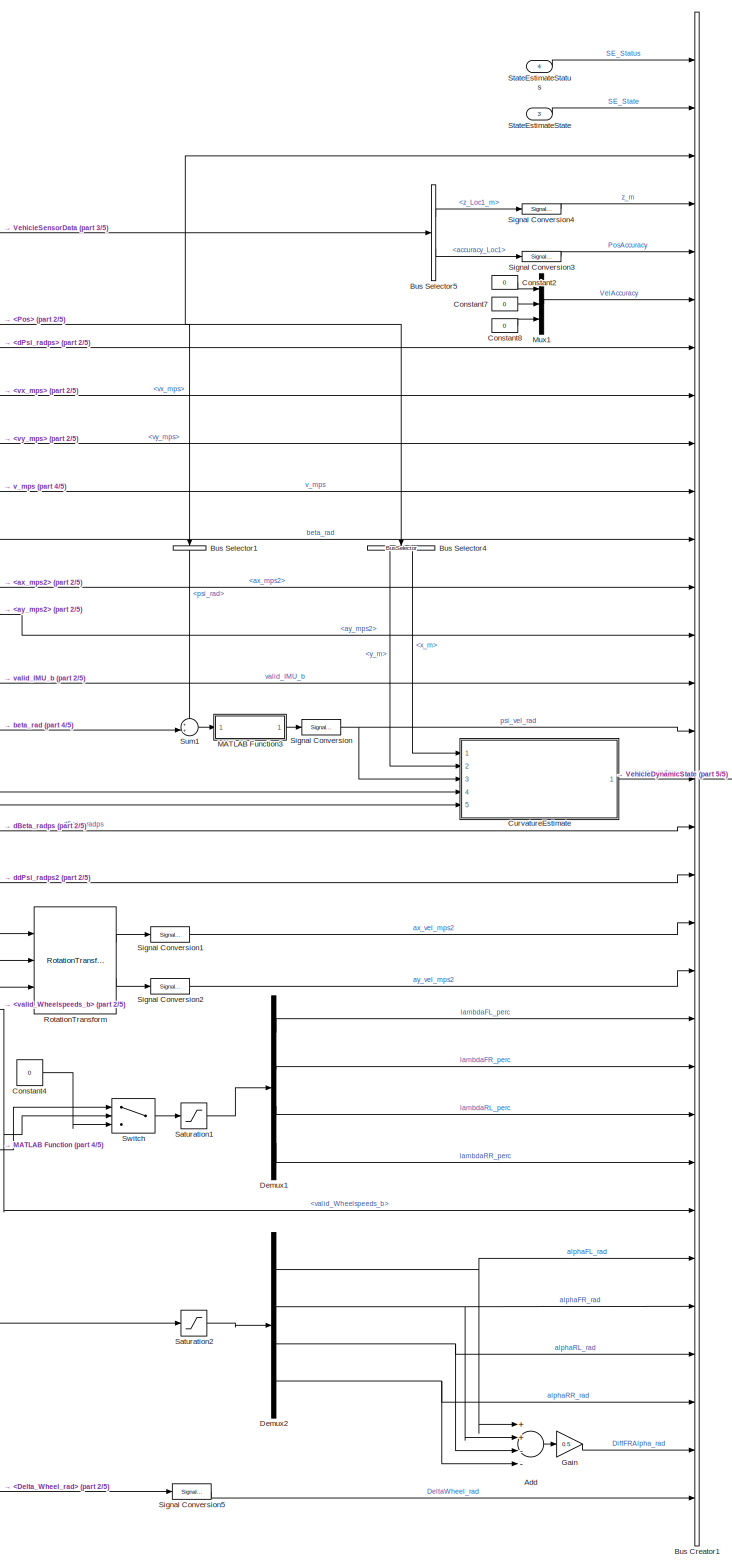
[diagram: ChooseStateEstimationSource/VehicleDynamicState_bus_assignement - part 1/5, right side, full height]
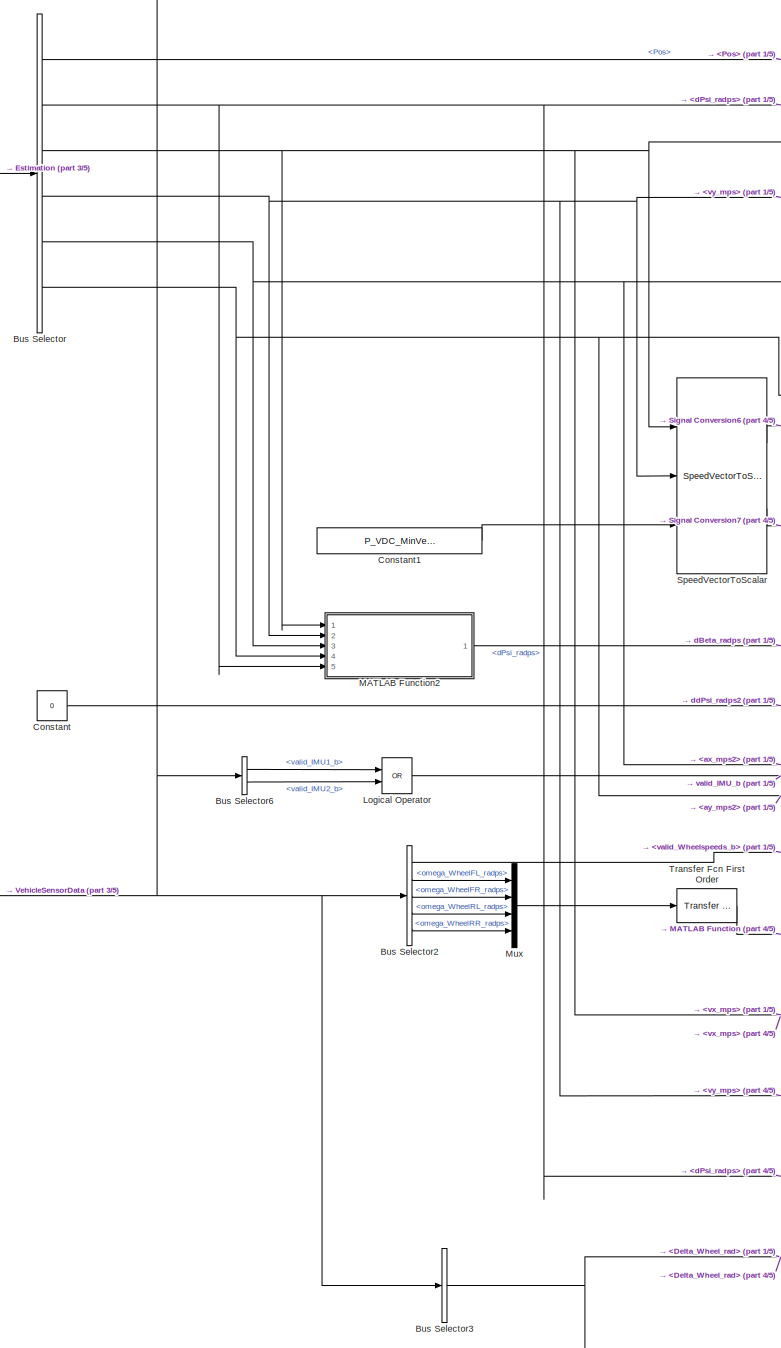
[diagram: ChooseStateEstimationSource/VehicleDynamicState_bus_assignement - part 2/5, left side, full height]
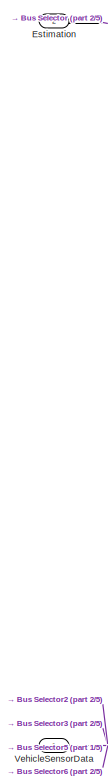
[diagram: ChooseStateEstimationSource/VehicleDynamicState_bus_assignement - part 3/5, middle left region]
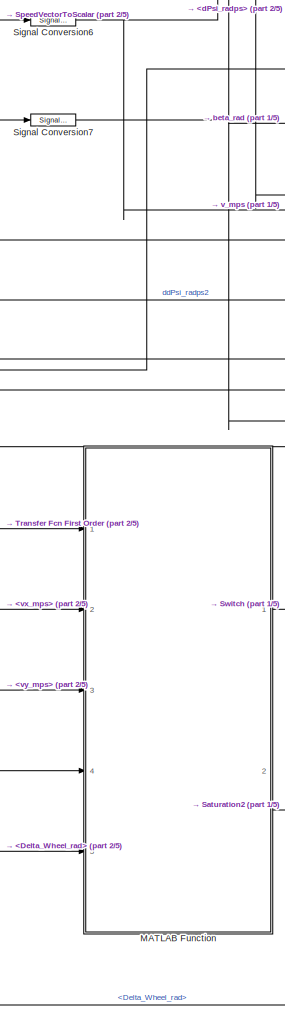
[diagram: ChooseStateEstimationSource/VehicleDynamicState_bus_assignement - part 4/5, bottom center region]
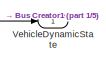
[diagram: ChooseStateEstimationSource/VehicleDynamicState_bus_assignement - part 5/5, middle right region]
BLOCK [SubSystem] ChooseStateEstimationSource/VehicleDynamicState_bus_assignement
  Ports = [4, 1]
  RequestExecContextInheritance = off
BLOCK [Sum] ChooseStateEstimationSource/VehicleDynamicState_bus_assignement/Add
  InputSameDT = off
  Inputs = ++--
  OutDataTypeStr = Inherit: Inherit via internal rule
  Ports = [4, 1]
  SaturateOnIntegerOverflow = off
BLOCK [BusCreator] ChooseStateEstimationSource/VehicleDynamicState_bus_assignement/Bus Creator1
  DisplayOption = bar
  InheritFromInputs = on
  Inputs = 31
  Ports = [31, 1]
BLOCK [BusSelector] ChooseStateEstimationSource/VehicleDynamicState_bus_assignement/Bus Selector
  OutputAsBus = off
  OutputSignals = Pos,dPsi_radps,vx_mps,vy_mps,ax_mps2,ay_mps2
  Ports = [1, 6]
BLOCK [BusSelector] ChooseStateEstimationSource/VehicleDynamicState_bus_assignement/Bus Selector1
  OutputAsBus = off
  OutputSignals = psi_rad
  Ports = [1, 1]
BLOCK [BusSelector] ChooseStateEstimationSource/VehicleDynamicState_bus_assignement/Bus Selector2
  OutputAsBus = off
  OutputSignals = valid_Wheelspeeds_b,omega_WheelFL_radps,omega_WheelFR_radps,omega_WheelRL_radps,omega_WheelRR_radps
  Ports = [1, 5]
BLOCK [BusSelector] ChooseStateEstimationSource/VehicleDynamicState_bus_assignement/Bus Selector3
  OutputAsBus = off
  OutputSignals = Delta_Wheel_rad
  Ports = [1, 1]
BLOCK [BusSelector] ChooseStateEstimationSource/VehicleDynamicState_bus_assignement/Bus Selector4
  OutputAsBus = off
  OutputSignals = y_m,x_m
  Ports = [1, 2]
BLOCK [BusSelector] ChooseStateEstimationSource/VehicleDynamicState_bus_assignement/Bus Selector5
  OutputAsBus = off
  OutputSignals = z_Loc1_m,accuracy_Loc1
  Ports = [1, 2]
BLOCK [BusSelector] ChooseStateEstimationSource/VehicleDynamicState_bus_assignement/Bus Selector6
  OutputAsBus = off
  OutputSignals = valid_IMU1_b,valid_IMU2_b
  Ports = [1, 2]
BLOCK [Constant] ChooseStateEstimationSource/VehicleDynamicState_bus_assignement/Constant
  Value = 0
BLOCK [Constant] ChooseStateEstimationSource/VehicleDynamicState_bus_assignement/Constant1
  Value = P_VDC_MinVelSlipCalc_mps
BLOCK [Constant] ChooseStateEstimationSource/VehicleDynamicState_bus_assignement/Constant2
  Value = 0
BLOCK [Constant] ChooseStateEstimationSource/VehicleDynamicState_bus_assignement/Constant4
  Value = 0
BLOCK [Constant] ChooseStateEstimationSource/VehicleDynamicState_bus_assignement/Constant7
  Value = 0
BLOCK [Constant] ChooseStateEstimationSource/VehicleDynamicState_bus_assignement/Constant8
  Value = 0
BLOCK [SubSystem] ChooseStateEstimationSource/VehicleDynamicState_bus_assignement/CurvatureEstimate
  Ports = [5, 1]
  RequestExecContextInheritance = off
BLOCK [Constant] ChooseStateEstimationSource/VehicleDynamicState_bus_assignement/CurvatureEstimate/Constant
  Value = 0
BLOCK [Constant] ChooseStateEstimationSource/VehicleDynamicState_bus_assignement/CurvatureEstimate/Constant1
  Value = P_VDC_CurvatureEstimationMode
BLOCK [MultiPortSwitch] ChooseStateEstimationSource/VehicleDynamicState_bus_assignement/CurvatureEstimate/Multiport Switch
  DataPortForDefault = Additional data port
  InputSameDT = off
  Inputs = 2
  Ports = [4, 1]
  SaturateOnIntegerOverflow = off
BLOCK [Saturate] ChooseStateEstimationSource/VehicleDynamicState_bus_assignement/CurvatureEstimate/Saturation
  InputPortMap = u0
  LowerLimit = -P_VDC_CurvatureEstimateMax_radpm
  Ports = [1, 1]
  UpperLimit = P_VDC_CurvatureEstimateMax_radpm
BLOCK [SubSystem] ChooseStateEstimationSource/VehicleDynamicState_bus_assignement/CurvatureEstimate/SteadyStateAssumption
  Ports = [2, 1]
  RequestExecContextInheritance = off
BLOCK [Abs] ChooseStateEstimationSource/VehicleDynamicState_bus_assignement/CurvatureEstimate/SteadyStateAssumption/Abs
  SaturateOnIntegerOverflow = off
BLOCK [Constant] ChooseStateEstimationSource/VehicleDynamicState_bus_assignement/CurvatureEstimate/SteadyStateAssumption/Constant1
  Value = P_VDC_MinVelSlipCalc_mps
BLOCK [Constant] ChooseStateEstimationSource/VehicleDynamicState_bus_assignement/CurvatureEstimate/SteadyStateAssumption/Constant2
  Value = P_VDC_MinVelSlipCalc_mps
BLOCK [Constant] ChooseStateEstimationSource/VehicleDynamicState_bus_assignement/CurvatureEstimate/SteadyStateAssumption/Constant3
BLOCK [Constant] ChooseStateEstimationSource/VehicleDynamicState_bus_assignement/CurvatureEstimate/SteadyStateAssumption/Constant4
BLOCK [Outport] ChooseStateEstimationSource/VehicleDynamicState_bus_assignement/CurvatureEstimate/SteadyStateAssumption/CurvatureEstimate_radpm
  IconDisplay = Port number
BLOCK [Product] ChooseStateEstimationSource/VehicleDynamicState_bus_assignement/CurvatureEstimate/SteadyStateAssumption/Divide
  InputSameDT = off
  Inputs = */
  OutDataTypeStr = Inherit: Inherit via internal rule
  Ports = [2, 1]
  RndMeth = Floor
  SaturateOnIntegerOverflow = off
BLOCK [Gain] ChooseStateEstimationSource/VehicleDynamicState_bus_assignement/CurvatureEstimate/SteadyStateAssumption/Gain
  Gain = 1/2
  OutDataTypeStr = Inherit: Inherit via internal rule
  ParamDataTypeStr = Inherit: Inherit via internal rule
  SaturateOnIntegerOverflow = off
BLOCK [Gain] ChooseStateEstimationSource/VehicleDynamicState_bus_assignement/CurvatureEstimate/SteadyStateAssumption/Gain1
  Gain = 1/2
  OutDataTypeStr = Inherit: Inherit via internal rule
  ParamDataTypeStr = Inherit: Inherit via internal rule
  SaturateOnIntegerOverflow = off
BLOCK [MinMax] ChooseStateEstimationSource/VehicleDynamicState_bus_assignement/CurvatureEstimate/SteadyStateAssumption/MinMax
  Function = max
  InputSameDT = off
  Inputs = 2
  Ports = [2, 1]
  SaturateOnIntegerOverflow = off
BLOCK [Product] ChooseStateEstimationSource/VehicleDynamicState_bus_assignement/CurvatureEstimate/SteadyStateAssumption/Product
  InputSameDT = off
  OutDataTypeStr = Inherit: Inherit via internal rule
  Ports = [2, 1]
  RndMeth = Floor
  SaturateOnIntegerOverflow = off
BLOCK [Product] ChooseStateEstimationSource/VehicleDynamicState_bus_assignement/CurvatureEstimate/SteadyStateAssumption/Product1
  InputSameDT = off
  OutDataTypeStr = Inherit: Inherit via internal rule
  Ports = [2, 1]
  RndMeth = Floor
  SaturateOnIntegerOverflow = off
BLOCK [Sum] ChooseStateEstimationSource/VehicleDynamicState_bus_assignement/CurvatureEstimate/SteadyStateAssumption/Sum
  IconShape = round
  InputSameDT = off
  Inputs = |+-
  OutDataTypeStr = Inherit: Inherit via internal rule
  Ports = [2, 1]
  SaturateOnIntegerOverflow = off
BLOCK [Sum] ChooseStateEstimationSource/VehicleDynamicState_bus_assignement/CurvatureEstimate/SteadyStateAssumption/Sum1
  IconShape = round
  InputSameDT = off
  Inputs = |++
  OutDataTypeStr = Inherit: Inherit via internal rule
  Ports = [2, 1]
  SaturateOnIntegerOverflow = off
BLOCK [Sum] ChooseStateEstimationSource/VehicleDynamicState_bus_assignement/CurvatureEstimate/SteadyStateAssumption/Sum2
  IconShape = round
  InputSameDT = off
  Inputs = |+-
  OutDataTypeStr = Inherit: Inherit via internal rule
  Ports = [2, 1]
  SaturateOnIntegerOverflow = off
BLOCK [Sum] ChooseStateEstimationSource/VehicleDynamicState_bus_assignement/CurvatureEstimate/SteadyStateAssumption/Sum3
  IconShape = round
  InputSameDT = off
  Inputs = |++
  OutDataTypeStr = Inherit: Inherit via internal rule
  Ports = [2, 1]
  SaturateOnIntegerOverflow = off
BLOCK [Reference] ChooseStateEstimationSource/VehicleDynamicState_bus_assignement/CurvatureEstimate/SteadyStateAssumption/Transfer Fcn First Order  REF=simulink/Discrete/Transfer Fcn
First Order
  Ports = [1, 1]
  SourceBlock = simulink/Discrete/Transfer Fcn\nFirst Order
  SourceProductBaseCode = SL
  SourceProductName = Simulink
  SourceType = First Order Transfer Fcn
BLOCK [Trigonometry] ChooseStateEstimationSource/VehicleDynamicState_bus_assignement/CurvatureEstimate/SteadyStateAssumption/Trigonometric Function
  Operator = tanh
  Ports = [1, 1]
BLOCK [Inport] ChooseStateEstimationSource/VehicleDynamicState_bus_assignement/CurvatureEstimate/SteadyStateAssumption/dPsi_radps
  IconDisplay = Port number
BLOCK [Inport] ChooseStateEstimationSource/VehicleDynamicState_bus_assignement/CurvatureEstimate/SteadyStateAssumption/v_abs_mps
  IconDisplay = Port number
  Port = 2
BLOCK [SubSystem] ChooseStateEstimationSource/VehicleDynamicState_bus_assignement/CurvatureEstimate/VelocityHeadingDifferentiation
  Ports = [4, 1]
  RequestExecContextInheritance = off
BLOCK [Constant] ChooseStateEstimationSource/VehicleDynamicState_bus_assignement/CurvatureEstimate/VelocityHeadingDifferentiation/Constant3
  Value = 2*P_VDC_MinVelSlipCalc_mps
BLOCK [Constant] ChooseStateEstimationSource/VehicleDynamicState_bus_assignement/CurvatureEstimate/VelocityHeadingDifferentiation/Constant4
BLOCK [Constant] ChooseStateEstimationSource/VehicleDynamicState_bus_assignement/CurvatureEstimate/VelocityHeadingDifferentiation/Constant5
BLOCK [Outport] ChooseStateEstimationSource/VehicleDynamicState_bus_assignement/CurvatureEstimate/VelocityHeadingDifferentiation/CurvatureEstimate_radpm
  IconDisplay = Port number
BLOCK [Reference] ChooseStateEstimationSource/VehicleDynamicState_bus_assignement/CurvatureEstimate/VelocityHeadingDifferentiation/Difference  REF=simulink/Discrete/Difference
  Ports = [1, 1]
  SourceBlock = simulink/Discrete/Difference
  SourceProductBaseCode = SL
  SourceProductName = Simulink
  SourceType = Difference
BLOCK [Reference] ChooseStateEstimationSource/VehicleDynamicState_bus_assignement/CurvatureEstimate/VelocityHeadingDifferentiation/Difference1  REF=simulink/Discrete/Difference
  Ports = [1, 1]
  SourceBlock = simulink/Discrete/Difference
  SourceProductBaseCode = SL
  SourceProductName = Simulink
  SourceType = Difference
BLOCK [Reference] ChooseStateEstimationSource/VehicleDynamicState_bus_assignement/CurvatureEstimate/VelocityHeadingDifferentiation/Difference2  REF=simulink/Discrete/Difference
  Ports = [1, 1]
  SourceBlock = simulink/Discrete/Difference
  SourceProductBaseCode = SL
  SourceProductName = Simulink
  SourceType = Difference
BLOCK [Product] ChooseStateEstimationSource/VehicleDynamicState_bus_assignement/CurvatureEstimate/VelocityHeadingDifferentiation/Divide
  InputSameDT = off
  Inputs = */
  OutDataTypeStr = Inherit: Inherit via internal rule
  Ports = [2, 1]
  RndMeth = Floor
  SaturateOnIntegerOverflow = off
BLOCK [Gain] ChooseStateEstimationSource/VehicleDynamicState_bus_assignement/CurvatureEstimate/VelocityHeadingDifferentiation/Gain
  Gain = tS
  OutDataTypeStr = Inherit: Inherit via internal rule
  ParamDataTypeStr = Inherit: Inherit via internal rule
  SaturateOnIntegerOverflow = off
BLOCK [Gain] ChooseStateEstimationSource/VehicleDynamicState_bus_assignement/CurvatureEstimate/VelocityHeadingDifferentiation/Gain1
  Gain = 1/2
  OutDataTypeStr = Inherit: Inherit via internal rule
  ParamDataTypeStr = Inherit: Inherit via internal rule
  SaturateOnIntegerOverflow = off
BLOCK [Gain] ChooseStateEstimationSource/VehicleDynamicState_bus_assignement/CurvatureEstimate/VelocityHeadingDifferentiation/Gain2
  Gain = 1/2
  OutDataTypeStr = Inherit: Inherit via internal rule
  ParamDataTypeStr = Inherit: Inherit via internal rule
  SaturateOnIntegerOverflow = off
BLOCK [SubSystem] ChooseStateEstimationSource/VehicleDynamicState_bus_assignement/CurvatureEstimate/VelocityHeadingDifferentiation/MATLAB Function3
  ErrorFcn = Stateflow.Translate.translate
  PermitHierarchicalResolution = ExplicitOnly
  Ports = [1, 1]
  RequestExecContextInheritance = off
  SFBlockType = MATLAB Function
  TreatAsAtomicUnit = on
BLOCK [Demux] ChooseStateEstimationSource/VehicleDynamicState_bus_assignement/CurvatureEstimate/VelocityHeadingDifferentiation/MATLAB Function3/ Demux 
  Outputs = 1
  Ports = [1, 1]
BLOCK [S-Function] ChooseStateEstimationSource/VehicleDynamicState_bus_assignement/CurvatureEstimate/VelocityHeadingDifferentiation/MATLAB Function3/ SFunction 
  EnableBusSupport = on
  FunctionName = sf_sfun
  PortCounts = [1 2]
  Ports = [1, 2]
  SFcnIsStateOwnerBlock = off
  SFunctionDeploymentMode = off
  Tag = Stateflow S-Function mvdc_state_estimation 2
BLOCK [Terminator] ChooseStateEstimationSource/VehicleDynamicState_bus_assignement/CurvatureEstimate/VelocityHeadingDifferentiation/MATLAB Function3/ Terminator 
BLOCK [Inport] ChooseStateEstimationSource/VehicleDynamicState_bus_assignement/CurvatureEstimate/VelocityHeadingDifferentiation/MATLAB Function3/u
  IconDisplay = Port number
BLOCK [Outport] ChooseStateEstimationSource/VehicleDynamicState_bus_assignement/CurvatureEstimate/VelocityHeadingDifferentiation/MATLAB Function3/y
  IconDisplay = Port number
BLOCK [MinMax] ChooseStateEstimationSource/VehicleDynamicState_bus_assignement/CurvatureEstimate/VelocityHeadingDifferentiation/MinMax
  Function = max
  InputSameDT = off
  Inputs = 2
  Ports = [2, 1]
  SaturateOnIntegerOverflow = off
BLOCK [Product] ChooseStateEstimationSource/VehicleDynamicState_bus_assignement/CurvatureEstimate/VelocityHeadingDifferentiation/Product
  InputSameDT = off
  OutDataTypeStr = Inherit: Inherit via internal rule
  Ports = [2, 1]
  RndMeth = Floor
  SaturateOnIntegerOverflow = off
BLOCK [Product] ChooseStateEstimationSource/VehicleDynamicState_bus_assignement/CurvatureEstimate/VelocityHeadingDifferentiation/Product1
  InputSameDT = off
  OutDataTypeStr = Inherit: Inherit via internal rule
  Ports = [2, 1]
  RndMeth = Floor
  SaturateOnIntegerOverflow = off
BLOCK [Product] ChooseStateEstimationSource/VehicleDynamicState_bus_assignement/CurvatureEstimate/VelocityHeadingDifferentiation/Product2
  InputSameDT = off
  OutDataTypeStr = Inherit: Inherit via internal rule
  Ports = [2, 1]
  RndMeth = Floor
  SaturateOnIntegerOverflow = off
BLOCK [Product] ChooseStateEstimationSource/VehicleDynamicState_bus_assignement/CurvatureEstimate/VelocityHeadingDifferentiation/Product3
  InputSameDT = off
  OutDataTypeStr = Inherit: Inherit via internal rule
  Ports = [2, 1]
  RndMeth = Floor
  SaturateOnIntegerOverflow = off
BLOCK [Sqrt] ChooseStateEstimationSource/VehicleDynamicState_bus_assignement/CurvatureEstimate/VelocityHeadingDifferentiation/Sqrt
BLOCK [Sum] ChooseStateEstimationSource/VehicleDynamicState_bus_assignement/CurvatureEstimate/VelocityHeadingDifferentiation/Sum
  IconShape = round
  InputSameDT = off
  Inputs = |++
  OutDataTypeStr = Inherit: Inherit via internal rule
  Ports = [2, 1]
  SaturateOnIntegerOverflow = off
BLOCK [Sum] ChooseStateEstimationSource/VehicleDynamicState_bus_assignement/CurvatureEstimate/VelocityHeadingDifferentiation/Sum1
  IconShape = round
  InputSameDT = off
  Inputs = |+-
  OutDataTypeStr = Inherit: Inherit via internal rule
  Ports = [2, 1]
  SaturateOnIntegerOverflow = off
BLOCK [Sum] ChooseStateEstimationSource/VehicleDynamicState_bus_assignement/CurvatureEstimate/VelocityHeadingDifferentiation/Sum2
  IconShape = round
  InputSameDT = off
  Inputs = |++
  OutDataTypeStr = Inherit: Inherit via internal rule
  Ports = [2, 1]
  SaturateOnIntegerOverflow = off
BLOCK [Sum] ChooseStateEstimationSource/VehicleDynamicState_bus_assignement/CurvatureEstimate/VelocityHeadingDifferentiation/Sum3
  IconShape = round
  InputSameDT = off
  Inputs = |+-
  OutDataTypeStr = Inherit: Inherit via internal rule
  Ports = [2, 1]
  SaturateOnIntegerOverflow = off
BLOCK [Sum] ChooseStateEstimationSource/VehicleDynamicState_bus_assignement/CurvatureEstimate/VelocityHeadingDifferentiation/Sum4
  IconShape = round
  InputSameDT = off
  Inputs = |++
  OutDataTypeStr = Inherit: Inherit via internal rule
  Ports = [2, 1]
  SaturateOnIntegerOverflow = off
BLOCK [Reference] ChooseStateEstimationSource/VehicleDynamicState_bus_assignement/CurvatureEstimate/VelocityHeadingDifferentiation/Transfer Fcn First Order  REF=simulink/Discrete/Transfer Fcn
First Order
  Ports = [1, 1]
  SourceBlock = simulink/Discrete/Transfer Fcn\nFirst Order
  SourceProductBaseCode = SL
  SourceProductName = Simulink
  SourceType = First Order Transfer Fcn
BLOCK [Reference] ChooseStateEstimationSource/VehicleDynamicState_bus_assignement/CurvatureEstimate/VelocityHeadingDifferentiation/Transfer Fcn First Order1  REF=simulink/Discrete/Transfer Fcn
First Order
  Ports = [1, 1]
  SourceBlock = simulink/Discrete/Transfer Fcn\nFirst Order
  SourceProductBaseCode = SL
  SourceProductName = Simulink
  SourceType = First Order Transfer Fcn
BLOCK [Trigonometry] ChooseStateEstimationSource/VehicleDynamicState_bus_assignement/CurvatureEstimate/VelocityHeadingDifferentiation/Trigonometric Function
  Operator = tanh
  Ports = [1, 1]
BLOCK [Inport] ChooseStateEstimationSource/VehicleDynamicState_bus_assignement/CurvatureEstimate/VelocityHeadingDifferentiation/psi_vel_rad
  IconDisplay = Port number
  Port = 2
BLOCK [Inport] ChooseStateEstimationSource/VehicleDynamicState_bus_assignement/CurvatureEstimate/VelocityHeadingDifferentiation/v_abs_mps
  IconDisplay = Port number
BLOCK [Inport] ChooseStateEstimationSource/VehicleDynamicState_bus_assignement/CurvatureEstimate/VelocityHeadingDifferentiation/x_m 
  IconDisplay = Port number
  Port = 3
BLOCK [Inport] ChooseStateEstimationSource/VehicleDynamicState_bus_assignement/CurvatureEstimate/VelocityHeadingDifferentiation/y_m
  IconDisplay = Port number
  Port = 4
BLOCK [Inport] ChooseStateEstimationSource/VehicleDynamicState_bus_assignement/CurvatureEstimate/dPsi_radps
  IconDisplay = Port number
  Port = 4
BLOCK [Outport] ChooseStateEstimationSource/VehicleDynamicState_bus_assignement/CurvatureEstimate/kappa_radpm
  IconDisplay = Port number
BLOCK [Inport] ChooseStateEstimationSource/VehicleDynamicState_bus_assignement/CurvatureEstimate/psi_vel_rad
  IconDisplay = Port number
  Port = 3
BLOCK [Inport] ChooseStateEstimationSource/VehicleDynamicState_bus_assignement/CurvatureEstimate/v_abs_mps
  IconDisplay = Port number
  Port = 5
BLOCK [Inport] ChooseStateEstimationSource/VehicleDynamicState_bus_assignement/CurvatureEstimate/x_m 
  IconDisplay = Port number
BLOCK [Inport] ChooseStateEstimationSource/VehicleDynamicState_bus_assignement/CurvatureEstimate/y_m
  IconDisplay = Port number
  Port = 2
BLOCK [Demux] ChooseStateEstimationSource/VehicleDynamicState_bus_assignement/Demux1
  DisplayOption = bar
  Ports = [1, 4]
BLOCK [Demux] ChooseStateEstimationSource/VehicleDynamicState_bus_assignement/Demux2
  DisplayOption = bar
  Ports = [1, 4]
BLOCK [Inport] ChooseStateEstimationSource/VehicleDynamicState_bus_assignement/Estimation
  IconDisplay = Port number
  Port = 2
BLOCK [Gain] ChooseStateEstimationSource/VehicleDynamicState_bus_assignement/Gain
  Gain = 0.5
  OutDataTypeStr = Inherit: Inherit via internal rule
  ParamDataTypeStr = Inherit: Inherit via internal rule
  SaturateOnIntegerOverflow = off
BLOCK [Logic] ChooseStateEstimationSource/VehicleDynamicState_bus_assignement/Logical Operator
  AllPortsSameDT = off
  Operator = OR
  OutDataTypeStr = boolean
  Ports = [2, 1]
BLOCK [SubSystem] ChooseStateEstimationSource/VehicleDynamicState_bus_assignement/MATLAB Function
  ErrorFcn = Stateflow.Translate.translate
  PermitHierarchicalResolution = ExplicitOnly
  Ports = [5, 2]
  RequestExecContextInheritance = off
  SFBlockType = MATLAB Function
  TreatAsAtomicUnit = on
BLOCK [Demux] ChooseStateEstimationSource/VehicleDynamicState_bus_assignement/MATLAB Function/ Demux 
  Outputs = 1
  Ports = [1, 1]
BLOCK [S-Function] ChooseStateEstimationSource/VehicleDynamicState_bus_assignement/MATLAB Function/ SFunction 
  EnableBusSupport = on
  FunctionName = sf_sfun
  Parameters = P_VDC_MinVelSlipCalc_mps,l_front_m,l_rear_m,tw_front_m,tw_rear_m,tyreradius_front_m,tyreradius_rear_m
  PortCounts = [5 3]
  Ports = [5, 3]
  SFcnIsStateOwnerBlock = off
  SFunctionDeploymentMode = off
  Tag = Stateflow S-Function mvdc_state_estimation 5
BLOCK [Terminator] ChooseStateEstimationSource/VehicleDynamicState_bus_assignement/MATLAB Function/ Terminator 
BLOCK [Inport] ChooseStateEstimationSource/VehicleDynamicState_bus_assignement/MATLAB Function/DeltaWheel_rad
  IconDisplay = Port number
  Port = 5
BLOCK [Outport] ChooseStateEstimationSource/VehicleDynamicState_bus_assignement/MATLAB Function/alpha_rad
  IconDisplay = Port number
  Port = 2
BLOCK [Inport] ChooseStateEstimationSource/VehicleDynamicState_bus_assignement/MATLAB Function/dPsi_radps
  IconDisplay = Port number
  Port = 4
BLOCK [Outport] ChooseStateEstimationSource/VehicleDynamicState_bus_assignement/MATLAB Function/lambda_perc
  IconDisplay = Port number
BLOCK [Inport] ChooseStateEstimationSource/VehicleDynamicState_bus_assignement/MATLAB Function/omega_rad
  IconDisplay = Port number
BLOCK [Inport] ChooseStateEstimationSource/VehicleDynamicState_bus_assignement/MATLAB Function/vxCB_mps
  IconDisplay = Port number
  Port = 2
BLOCK [Inport] ChooseStateEstimationSource/VehicleDynamicState_bus_assignement/MATLAB Function/vyCG_mps
  IconDisplay = Port number
  Port = 3
BLOCK [SubSystem] ChooseStateEstimationSource/VehicleDynamicState_bus_assignement/MATLAB Function2
  ErrorFcn = Stateflow.Translate.translate
  PermitHierarchicalResolution = ExplicitOnly
  Ports = [5, 1]
  RequestExecContextInheritance = off
  SFBlockType = MATLAB Function
  TreatAsAtomicUnit = on
BLOCK [Demux] ChooseStateEstimationSource/VehicleDynamicState_bus_assignement/MATLAB Function2/ Demux 
  Outputs = 1
  Ports = [1, 1]
BLOCK [S-Function] ChooseStateEstimationSource/VehicleDynamicState_bus_assignement/MATLAB Function2/ SFunction 
  EnableBusSupport = on
  FunctionName = sf_sfun
  PortCounts = [5 2]
  Ports = [5, 2]
  SFcnIsStateOwnerBlock = off
  SFunctionDeploymentMode = off
  Tag = Stateflow S-Function mvdc_state_estimation 10
BLOCK [Terminator] ChooseStateEstimationSource/VehicleDynamicState_bus_assignement/MATLAB Function2/ Terminator 
BLOCK [Inport] ChooseStateEstimationSource/VehicleDynamicState_bus_assignement/MATLAB Function2/ax_mps2
  IconDisplay = Port number
  Port = 3
BLOCK [Inport] ChooseStateEstimationSource/VehicleDynamicState_bus_assignement/MATLAB Function2/ay_mps2
  IconDisplay = Port number
  Port = 4
BLOCK [Outport] ChooseStateEstimationSource/VehicleDynamicState_bus_assignement/MATLAB Function2/dBeta_radps
  IconDisplay = Port number
BLOCK [Inport] ChooseStateEstimationSource/VehicleDynamicState_bus_assignement/MATLAB Function2/dPsi_radps
  IconDisplay = Port number
  Port = 5
BLOCK [Inport] ChooseStateEstimationSource/VehicleDynamicState_bus_assignement/MATLAB Function2/vx_mps
  IconDisplay = Port number
BLOCK [Inport] ChooseStateEstimationSource/VehicleDynamicState_bus_assignement/MATLAB Function2/vy_mps
  IconDisplay = Port number
  Port = 2
BLOCK [SubSystem] ChooseStateEstimationSource/VehicleDynamicState_bus_assignement/MATLAB Function3
  ErrorFcn = Stateflow.Translate.translate
  PermitHierarchicalResolution = ExplicitOnly
  Ports = [1, 1]
  RequestExecContextInheritance = off
  SFBlockType = MATLAB Function
  TreatAsAtomicUnit = on
BLOCK [Demux] ChooseStateEstimationSource/VehicleDynamicState_bus_assignement/MATLAB Function3/ Demux 
  Outputs = 1
  Ports = [1, 1]
BLOCK [S-Function] ChooseStateEstimationSource/VehicleDynamicState_bus_assignement/MATLAB Function3/ SFunction 
  EnableBusSupport = on
  FunctionName = sf_sfun
  PortCounts = [1 2]
  Ports = [1, 2]
  SFcnIsStateOwnerBlock = off
  SFunctionDeploymentMode = off
  Tag = Stateflow S-Function mvdc_state_estimation 11
BLOCK [Terminator] ChooseStateEstimationSource/VehicleDynamicState_bus_assignement/MATLAB Function3/ Terminator 
BLOCK [Inport] ChooseStateEstimationSource/VehicleDynamicState_bus_assignement/MATLAB Function3/u
  IconDisplay = Port number
BLOCK [Outport] ChooseStateEstimationSource/VehicleDynamicState_bus_assignement/MATLAB Function3/y
  IconDisplay = Port number
BLOCK [Mux] ChooseStateEstimationSource/VehicleDynamicState_bus_assignement/Mux
  DisplayOption = bar
  Ports = [4, 1]
BLOCK [Mux] ChooseStateEstimationSource/VehicleDynamicState_bus_assignement/Mux1
  DisplayOption = bar
  Inputs = 3
  Ports = [3, 1]
BLOCK [Reference] ChooseStateEstimationSource/VehicleDynamicState_bus_assignement/RotationTransform  REF=misc/RotationTransform  (lib defined in slx_2fe3b46eb0ca)
  Ports = [3, 2]
  SourceBlock = misc/RotationTransform
  SourceType = SubSystem
BLOCK [Saturate] ChooseStateEstimationSource/VehicleDynamicState_bus_assignement/Saturation1
  InputPortMap = u0
  LowerLimit = P_MLOC_MinWheelslip_perc
  Ports = [1, 1]
  UpperLimit = P_MLOC_MaxWheelslip_perc
BLOCK [Saturate] ChooseStateEstimationSource/VehicleDynamicState_bus_assignement/Saturation2
  InputPortMap = u0
  LowerLimit = P_MLOC_MinWheelslipangle_rad
  Ports = [1, 1]
  UpperLimit = P_MLOC_MaxWheelslipangle_rad
BLOCK [SignalConversion] ChooseStateEstimationSource/VehicleDynamicState_bus_assignement/Signal Conversion
  OverrideOpt = off
BLOCK [SignalConversion] ChooseStateEstimationSource/VehicleDynamicState_bus_assignement/Signal Conversion1
  OverrideOpt = off
BLOCK [SignalConversion] ChooseStateEstimationSource/VehicleDynamicState_bus_assignement/Signal Conversion2
  OverrideOpt = off
BLOCK [SignalConversion] ChooseStateEstimationSource/VehicleDynamicState_bus_assignement/Signal Conversion3
  OverrideOpt = off
BLOCK [SignalConversion] ChooseStateEstimationSource/VehicleDynamicState_bus_assignement/Signal Conversion4
  OverrideOpt = off
BLOCK [SignalConversion] ChooseStateEstimationSource/VehicleDynamicState_bus_assignement/Signal Conversion5
  OverrideOpt = off
BLOCK [SignalConversion] ChooseStateEstimationSource/VehicleDynamicState_bus_assignement/Signal Conversion6
  OverrideOpt = off
BLOCK [SignalConversion] ChooseStateEstimationSource/VehicleDynamicState_bus_assignement/Signal Conversion7
  OverrideOpt = off
BLOCK [Reference] ChooseStateEstimationSource/VehicleDynamicState_bus_assignement/SpeedVectorToScalar  REF=misc/SpeedVectorToScalar  (lib defined in slx_2fe3b46eb0ca)
  Ports = [3, 2]
  SourceBlock = misc/SpeedVectorToScalar
  SourceType = SubSystem
BLOCK [Inport] ChooseStateEstimationSource/VehicleDynamicState_bus_assignement/StateEstimateState
  BusOutputAsStruct = on
  IconDisplay = Port number
  OutDataTypeStr = Enum: TUMStateEstimationState
  Port = 3
BLOCK [Inport] ChooseStateEstimationSource/VehicleDynamicState_bus_assignement/StateEstimateStatus
  BusOutputAsStruct = on
  IconDisplay = Port number
  OutDataTypeStr = Enum: TUMHealthStatus
  Port = 4
BLOCK [Sum] ChooseStateEstimationSource/VehicleDynamicState_bus_assignement/Sum1
  IconShape = round
  InputSameDT = off
  Inputs = ++|
  OutDataTypeStr = Inherit: Inherit via internal rule
  Ports = [2, 1]
  SaturateOnIntegerOverflow = off
BLOCK [Switch] ChooseStateEstimationSource/VehicleDynamicState_bus_assignement/Switch
  Criteria = u2 > Threshold
  InputSameDT = off
  SaturateOnIntegerOverflow = off
BLOCK [Reference] ChooseStateEstimationSource/VehicleDynamicState_bus_assignement/Transfer Fcn First Order  REF=simulink/Discrete/Transfer Fcn
First Order
  Ports = [1, 1]
  SourceBlock = simulink/Discrete/Transfer Fcn\nFirst Order
  SourceProductBaseCode = SL
  SourceProductName = Simulink
  SourceType = First Order Transfer Fcn
BLOCK [Outport] ChooseStateEstimationSource/VehicleDynamicState_bus_assignement/VehicleDynamicState
  IconDisplay = Port number
BLOCK [Inport] ChooseStateEstimationSource/VehicleDynamicState_bus_assignement/VehicleSensorData
  IconDisplay = Port number
BLOCK [Inport] ChooseStateEstimationSource/VehicleSensorData
  IconDisplay = Port number
BLOCK [Memory] Memory
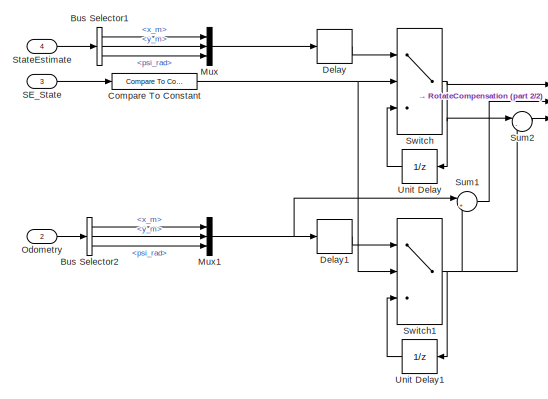
[diagram: OdometryLocalization - part 1/2, top left region]
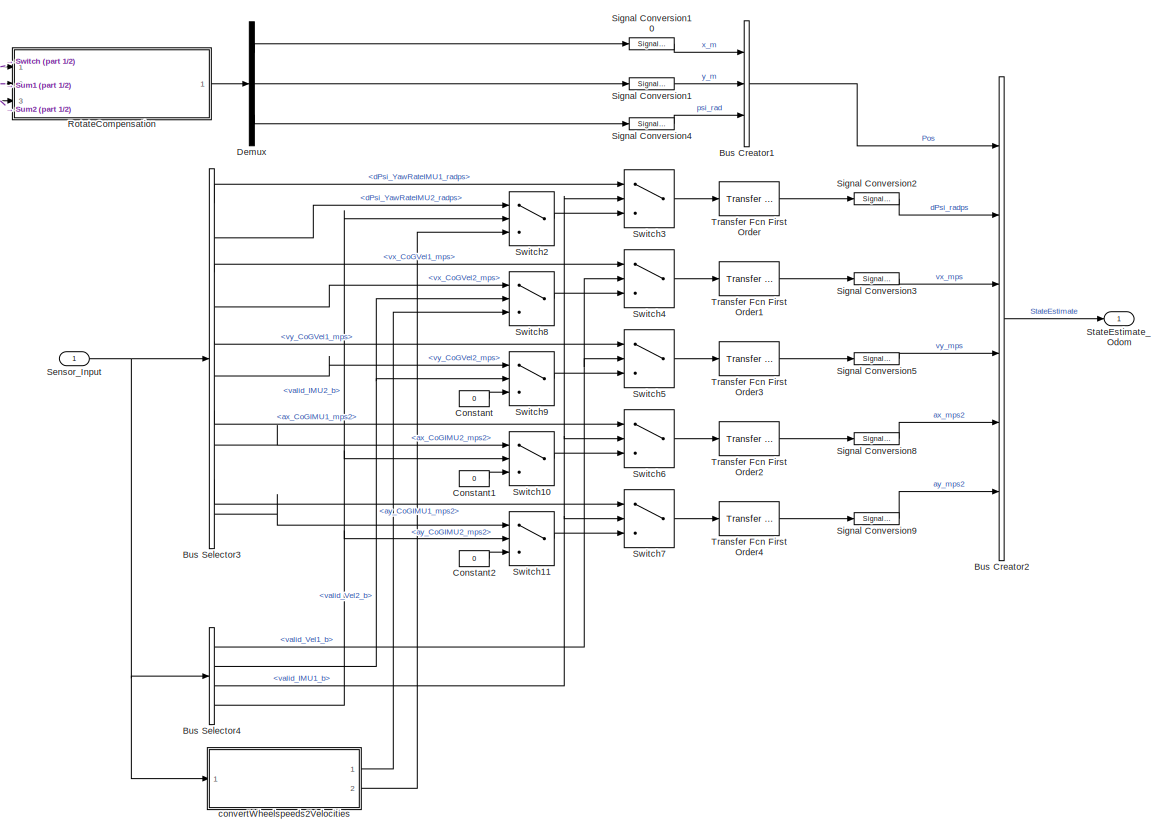
[diagram: OdometryLocalization - part 2/2, center side, full height]
BLOCK [SubSystem] OdometryLocalization
  Ports = [4, 1]
  RequestExecContextInheritance = off
BLOCK [BusCreator] OdometryLocalization/Bus Creator1
  DisplayOption = bar
  InheritFromInputs = on
  Inputs = 3
  OutDataTypeStr = Bus: CartPos
  Ports = [3, 1]
BLOCK [BusCreator] OdometryLocalization/Bus Creator2
  DisplayOption = bar
  InheritFromInputs = on
  Inputs = 6
  OutDataTypeStr = Bus: StateEstimation_state
  Ports = [6, 1]
BLOCK [BusSelector] OdometryLocalization/Bus Selector1
  OutputAsBus = off
  OutputSignals = Pos.x_m,Pos.y_m,Pos.psi_rad
  Ports = [1, 3]
BLOCK [BusSelector] OdometryLocalization/Bus Selector2
  OutputAsBus = off
  OutputSignals = Position.x_m,Position.y_m,Position.psi_rad
  Ports = [1, 3]
BLOCK [BusSelector] OdometryLocalization/Bus Selector3
  OutputAsBus = off
  OutputSignals = dPsi_YawRateIMU1_radps,dPsi_YawRateIMU2_radps,vx_CoGVel1_mps,vx_CoGVel2_mps,vy_CoGVel1_mps,vy_CoGVel2_mps,ax_CoGIMU1_mps2,ax_CoGIMU2_mps2,ay_CoGIMU1_mps2,ay_CoGIMU2_mps2
  Ports = [1, 10]
BLOCK [BusSelector] OdometryLocalization/Bus Selector4
  OutputAsBus = off
  OutputSignals = valid_Vel1_b,valid_Vel2_b,valid_IMU1_b,valid_IMU2_b
  Ports = [1, 4]
BLOCK [Reference] OdometryLocalization/Compare To Constant  REF=simulink/Logic and Bit
Operations/Compare
To Constant
  Ports = [1, 1]
  SourceBlock = simulink/Logic and Bit\nOperations/Compare\nTo Constant
  SourceProductBaseCode = SL
  SourceProductName = Simulink
  SourceType = Compare To Constant
BLOCK [Constant] OdometryLocalization/Constant
  Value = 0
BLOCK [Constant] OdometryLocalization/Constant1
  Value = 0
BLOCK [Constant] OdometryLocalization/Constant2
  Value = 0
BLOCK [Delay] OdometryLocalization/Delay
  DelayLength = P_VDC_SEResetSamples
  InputPortMap = u0
  Ports = [1, 1]
BLOCK [Delay] OdometryLocalization/Delay1
  DelayLength = P_VDC_SEResetSamples
  InputPortMap = u0
  Ports = [1, 1]
BLOCK [Demux] OdometryLocalization/Demux
  DisplayOption = bar
  Outputs = 3
  Ports = [1, 3]
BLOCK [Mux] OdometryLocalization/Mux
  DisplayOption = bar
  Inputs = 3
  Ports = [3, 1]
BLOCK [Mux] OdometryLocalization/Mux1
  DisplayOption = bar
  Inputs = 3
  Ports = [3, 1]
BLOCK [Inport] OdometryLocalization/Odometry
  IconDisplay = Port number
  Port = 2
BLOCK [SubSystem] OdometryLocalization/RotateCompensation
  Ports = [3, 1]
  RequestExecContextInheritance = off
BLOCK [Inport] OdometryLocalization/RotateCompensation/DIffOdometry
  IconDisplay = Port number
  Port = 2
BLOCK [Demux] OdometryLocalization/RotateCompensation/Demux
  DisplayOption = bar
  Outputs = 3
  Ports = [1, 3]
BLOCK [Demux] OdometryLocalization/RotateCompensation/Demux1
  DisplayOption = bar
  Outputs = 3
  Ports = [1, 3]
BLOCK [Inport] OdometryLocalization/RotateCompensation/DiffOrigin
  IconDisplay = Port number
  Port = 3
BLOCK [SubSystem] OdometryLocalization/RotateCompensation/MATLAB Function2
  ErrorFcn = Stateflow.Translate.translate
  PermitHierarchicalResolution = ExplicitOnly
  Ports = [1, 1]
  RequestExecContextInheritance = off
  SFBlockType = MATLAB Function
  TreatAsAtomicUnit = on
BLOCK [Demux] OdometryLocalization/RotateCompensation/MATLAB Function2/ Demux 
  Outputs = 1
  Ports = [1, 1]
BLOCK [S-Function] OdometryLocalization/RotateCompensation/MATLAB Function2/ SFunction 
  EnableBusSupport = on
  FunctionName = sf_sfun
  PortCounts = [1 2]
  Ports = [1, 2]
  SFcnIsStateOwnerBlock = off
  SFunctionDeploymentMode = off
  Tag = Stateflow S-Function mvdc_state_estimation 3
BLOCK [Terminator] OdometryLocalization/RotateCompensation/MATLAB Function2/ Terminator 
BLOCK [Inport] OdometryLocalization/RotateCompensation/MATLAB Function2/u
  IconDisplay = Port number
BLOCK [Outport] OdometryLocalization/RotateCompensation/MATLAB Function2/y
  IconDisplay = Port number
BLOCK [Mux] OdometryLocalization/RotateCompensation/Mux
  DisplayOption = bar
  Inputs = 3
  Ports = [3, 1]
BLOCK [Outport] OdometryLocalization/RotateCompensation/OdometryBasedLocalization
  IconDisplay = Port number
BLOCK [Inport] OdometryLocalization/RotateCompensation/Origin
  IconDisplay = Port number
BLOCK [Reference] OdometryLocalization/RotateCompensation/RotationTransform  REF=misc/RotationTransform  (lib defined in slx_2fe3b46eb0ca)
  Ports = [3, 2]
  SourceBlock = misc/RotationTransform
  SourceType = SubSystem
BLOCK [Sum] OdometryLocalization/RotateCompensation/Sum
  IconShape = round
  InputSameDT = off
  Inputs = |++
  OutDataTypeStr = Inherit: Inherit via internal rule
  Ports = [2, 1]
  SaturateOnIntegerOverflow = off
BLOCK [Terminator] OdometryLocalization/RotateCompensation/Terminator
BLOCK [Terminator] OdometryLocalization/RotateCompensation/Terminator1
BLOCK [UnaryMinus] OdometryLocalization/RotateCompensation/Unary Minus
BLOCK [Inport] OdometryLocalization/SE_State
  IconDisplay = Port number
  Port = 3
BLOCK [Inport] OdometryLocalization/Sensor_Input
  IconDisplay = Port number
BLOCK [SignalConversion] OdometryLocalization/Signal Conversion1
  OverrideOpt = off
BLOCK [SignalConversion] OdometryLocalization/Signal Conversion10
  OverrideOpt = off
BLOCK [SignalConversion] OdometryLocalization/Signal Conversion2
  OverrideOpt = off
BLOCK [SignalConversion] OdometryLocalization/Signal Conversion3
  OverrideOpt = off
BLOCK [SignalConversion] OdometryLocalization/Signal Conversion4
  OverrideOpt = off
BLOCK [SignalConversion] OdometryLocalization/Signal Conversion5
  OverrideOpt = off
BLOCK [SignalConversion] OdometryLocalization/Signal Conversion8
  OverrideOpt = off
BLOCK [SignalConversion] OdometryLocalization/Signal Conversion9
  OverrideOpt = off
BLOCK [Inport] OdometryLocalization/StateEstimate
  IconDisplay = Port number
  Port = 4
BLOCK [Outport] OdometryLocalization/StateEstimate_Odom
  IconDisplay = Port number
BLOCK [Sum] OdometryLocalization/Sum1
  IconShape = round
  InputSameDT = off
  Inputs = |+-
  OutDataTypeStr = Inherit: Inherit via internal rule
  Ports = [2, 1]
  SaturateOnIntegerOverflow = off
BLOCK [Sum] OdometryLocalization/Sum2
  IconShape = round
  InputSameDT = off
  Inputs = |-+
  OutDataTypeStr = Inherit: Inherit via internal rule
  Ports = [2, 1]
  SaturateOnIntegerOverflow = off
BLOCK [Switch] OdometryLocalization/Switch
  Criteria = u2 > Threshold
  InputSameDT = off
  SaturateOnIntegerOverflow = off
BLOCK [Switch] OdometryLocalization/Switch1
  Criteria = u2 > Threshold
  InputSameDT = off
  SaturateOnIntegerOverflow = off
BLOCK [Switch] OdometryLocalization/Switch10
  Criteria = u2 > Threshold
  InputSameDT = off
  SaturateOnIntegerOverflow = off
BLOCK [Switch] OdometryLocalization/Switch11
  Criteria = u2 > Threshold
  InputSameDT = off
  SaturateOnIntegerOverflow = off
BLOCK [Switch] OdometryLocalization/Switch2
  Criteria = u2 > Threshold
  InputSameDT = off
  SaturateOnIntegerOverflow = off
BLOCK [Switch] OdometryLocalization/Switch3
  Criteria = u2 > Threshold
  InputSameDT = off
  SaturateOnIntegerOverflow = off
BLOCK [Switch] OdometryLocalization/Switch4
  Criteria = u2 > Threshold
  InputSameDT = off
  SaturateOnIntegerOverflow = off
BLOCK [Switch] OdometryLocalization/Switch5
  Criteria = u2 > Threshold
  InputSameDT = off
  SaturateOnIntegerOverflow = off
BLOCK [Switch] OdometryLocalization/Switch6
  Criteria = u2 > Threshold
  InputSameDT = off
  SaturateOnIntegerOverflow = off
BLOCK [Switch] OdometryLocalization/Switch7
  Criteria = u2 > Threshold
  InputSameDT = off
  SaturateOnIntegerOverflow = off
BLOCK [Switch] OdometryLocalization/Switch8
  Criteria = u2 > Threshold
  InputSameDT = off
  SaturateOnIntegerOverflow = off
BLOCK [Switch] OdometryLocalization/Switch9
  Criteria = u2 > Threshold
  InputSameDT = off
  SaturateOnIntegerOverflow = off
BLOCK [Reference] OdometryLocalization/Transfer Fcn First Order  REF=simulink/Discrete/Transfer Fcn
First Order
  Ports = [1, 1]
  SourceBlock = simulink/Discrete/Transfer Fcn\nFirst Order
  SourceProductBaseCode = SL
  SourceProductName = Simulink
  SourceType = First Order Transfer Fcn
BLOCK [Reference] OdometryLocalization/Transfer Fcn First Order1  REF=simulink/Discrete/Transfer Fcn
First Order
  Ports = [1, 1]
  SourceBlock = simulink/Discrete/Transfer Fcn\nFirst Order
  SourceProductBaseCode = SL
  SourceProductName = Simulink
  SourceType = First Order Transfer Fcn
BLOCK [Reference] OdometryLocalization/Transfer Fcn First Order2  REF=simulink/Discrete/Transfer Fcn
First Order
  Ports = [1, 1]
  SourceBlock = simulink/Discrete/Transfer Fcn\nFirst Order
  SourceProductBaseCode = SL
  SourceProductName = Simulink
  SourceType = First Order Transfer Fcn
BLOCK [Reference] OdometryLocalization/Transfer Fcn First Order3  REF=simulink/Discrete/Transfer Fcn
First Order
  Ports = [1, 1]
  SourceBlock = simulink/Discrete/Transfer Fcn\nFirst Order
  SourceProductBaseCode = SL
  SourceProductName = Simulink
  SourceType = First Order Transfer Fcn
BLOCK [Reference] OdometryLocalization/Transfer Fcn First Order4  REF=simulink/Discrete/Transfer Fcn
First Order
  Ports = [1, 1]
  SourceBlock = simulink/Discrete/Transfer Fcn\nFirst Order
  SourceProductBaseCode = SL
  SourceProductName = Simulink
  SourceType = First Order Transfer Fcn
BLOCK [UnitDelay] OdometryLocalization/Unit Delay
  InputProcessing = Elements as channels (sample based)
  SampleTime = -1
BLOCK [UnitDelay] OdometryLocalization/Unit Delay1
  InputProcessing = Elements as channels (sample based)
  SampleTime = -1
BLOCK [SubSystem] OdometryLocalization/convertWheelspeeds2Velocities
  Ports = [1, 2]
  RequestExecContextInheritance = off
BLOCK [Sum] OdometryLocalization/convertWheelspeeds2Velocities/Add
  InputSameDT = off
  Inputs = 4
  OutDataTypeStr = Inherit: Inherit via internal rule
  Ports = [4, 1]
  SaturateOnIntegerOverflow = off
BLOCK [BusSelector] OdometryLocalization/convertWheelspeeds2Velocities/Bus Selector3
  OutputAsBus = off
  OutputSignals = omega_WheelFL_radps,omega_WheelFR_radps,omega_WheelRL_radps,omega_WheelRR_radps
  Ports = [1, 4]
BLOCK [Reference] OdometryLocalization/convertWheelspeeds2Velocities/Compare To Constant  REF=simulink/Logic and Bit
Operations/Compare
To Constant
  Ports = [1, 1]
  SourceBlock = simulink/Logic and Bit\nOperations/Compare\nTo Constant
  SourceProductBaseCode = SL
  SourceProductName = Simulink
  SourceType = Compare To Constant
BLOCK [Constant] OdometryLocalization/convertWheelspeeds2Velocities/Constant1
  Value = 0
BLOCK [Gain] OdometryLocalization/convertWheelspeeds2Velocities/Gain
  Gain = tyreradius_front_m
  OutDataTypeStr = Inherit: Inherit via internal rule
  ParamDataTypeStr = Inherit: Inherit via internal rule
  SaturateOnIntegerOverflow = off
BLOCK [Gain] OdometryLocalization/convertWheelspeeds2Velocities/Gain1
  Gain = tyreradius_front_m
  OutDataTypeStr = Inherit: Inherit via internal rule
  ParamDataTypeStr = Inherit: Inherit via internal rule
  SaturateOnIntegerOverflow = off
BLOCK [Gain] OdometryLocalization/convertWheelspeeds2Velocities/Gain2
  Gain = tyreradius_rear_m
  OutDataTypeStr = Inherit: Inherit via internal rule
  ParamDataTypeStr = Inherit: Inherit via internal rule
  SaturateOnIntegerOverflow = off
BLOCK [Gain] OdometryLocalization/convertWheelspeeds2Velocities/Gain3
  Gain = tyreradius_rear_m
  OutDataTypeStr = Inherit: Inherit via internal rule
  ParamDataTypeStr = Inherit: Inherit via internal rule
  SaturateOnIntegerOverflow = off
BLOCK [Gain] OdometryLocalization/convertWheelspeeds2Velocities/Gain4
  Gain = 0.25
  OutDataTypeStr = Inherit: Inherit via internal rule
  ParamDataTypeStr = Inherit: Inherit via internal rule
  SaturateOnIntegerOverflow = off
BLOCK [Gain] OdometryLocalization/convertWheelspeeds2Velocities/Gain5
  Gain = 1/tw_front_m
  OutDataTypeStr = Inherit: Inherit via internal rule
  ParamDataTypeStr = Inherit: Inherit via internal rule
  SaturateOnIntegerOverflow = off
BLOCK [Gain] OdometryLocalization/convertWheelspeeds2Velocities/Gain6
  Gain = 1/tw_rear_m
  OutDataTypeStr = Inherit: Inherit via internal rule
  ParamDataTypeStr = Inherit: Inherit via internal rule
  SaturateOnIntegerOverflow = off
BLOCK [Gain] OdometryLocalization/convertWheelspeeds2Velocities/Gain7
  Gain = 0.5
  OutDataTypeStr = Inherit: Inherit via internal rule
  ParamDataTypeStr = Inherit: Inherit via internal rule
  SaturateOnIntegerOverflow = off
BLOCK [Sum] OdometryLocalization/convertWheelspeeds2Velocities/Subtract
  InputSameDT = off
  Inputs = -+
  OutDataTypeStr = Inherit: Inherit via internal rule
  Ports = [2, 1]
  SaturateOnIntegerOverflow = off
BLOCK [Sum] OdometryLocalization/convertWheelspeeds2Velocities/Subtract1
  InputSameDT = off
  Inputs = -+
  OutDataTypeStr = Inherit: Inherit via internal rule
  Ports = [2, 1]
  SaturateOnIntegerOverflow = off
BLOCK [Sum] OdometryLocalization/convertWheelspeeds2Velocities/Subtract2
  InputSameDT = off
  OutDataTypeStr = Inherit: Inherit via internal rule
  Ports = [2, 1]
  SaturateOnIntegerOverflow = off
BLOCK [Switch] OdometryLocalization/convertWheelspeeds2Velocities/Switch
  Criteria = u2 > Threshold
  InputSameDT = off
  SaturateOnIntegerOverflow = off
BLOCK [Inport] OdometryLocalization/convertWheelspeeds2Velocities/VehicleSensorData
  IconDisplay = Port number
BLOCK [Outport] OdometryLocalization/convertWheelspeeds2Velocities/VelocityEstimate_mps
  IconDisplay = Port number
BLOCK [Outport] OdometryLocalization/convertWheelspeeds2Velocities/YawRateEstimate_radps
  IconDisplay = Port number
  Port = 2
BLOCK [Outport] OdometrySend
  BusOutputAsStruct = on
  IconDisplay = Port number
  OutDataTypeStr = Bus: VisualLoc_Send
  Port = 3
BLOCK [Inport] TUMModeControl
  BusOutputAsStruct = on
  IconDisplay = Port number
  OutDataTypeStr = Bus: TUMModeControl
  PortDimensions = 1
BLOCK [Terminator] Terminator
BLOCK [Outport] VehicleDynamicState
  IconDisplay = Port number
  OutDataTypeStr = Bus: VehicleDynamicState
BLOCK [Inport] VehicleSensorData
  IconDisplay = Port number
  OutDataTypeStr = Bus: VehicleSensorData
  Port = 2
BLOCK [Outport] debug
  IconDisplay = Port number
  OutDataTypeStr = Bus: mvdc_state_estimation_debug
  Port = 2
  PortDimensions = 1
  SamplingMode = Sample based
  SignalType = real
BLOCK [SubSystem] debug_bus_assignement
  Ports = [4, 1]
  RequestExecContextInheritance = off
BLOCK [BusCreator] debug_bus_assignement/Bus Creator1
  DisplayOption = bar
  InheritFromInputs = on
  Inputs = 4
  Ports = [4, 1]
BLOCK [Inport] debug_bus_assignement/DiagnosisDebug
  IconDisplay = Port number
  Port = 4
BLOCK [Inport] debug_bus_assignement/Estimation
  IconDisplay = Port number
  Port = 2
BLOCK [Inport] debug_bus_assignement/Odometry
  IconDisplay = Port number
  Port = 3
BLOCK [Inport] debug_bus_assignement/Residuals
  IconDisplay = Port number
BLOCK [Outport] debug_bus_assignement/debug
  IconDisplay = Port number
BLOCK [ModelReference] mvdc_KF_PointMassJoint
  ModelNameDialog = mvdc_KF_PointMassJoint.slx
  ModelReferenceVersion = 1.201
  Ports = [3, 3]
BLOCK [ModelReference] mvdc_estimation_preprocessing
  ModelNameDialog = mvdc_estimation_preprocessing
  ModelReferenceVersion = 1.433
  Ports = [2, 6]
BLOCK [SubSystem] noSensorFusion
  Ports = [1, 2]
  RequestExecContextInheritance = off
BLOCK [BusCreator] noSensorFusion/Bus Creator
  DisplayOption = bar
  InheritFromInputs = on
  Inputs = 6
  OutDataTypeStr = Bus: StateEstimation_state
  Ports = [6, 1]
BLOCK [BusCreator] noSensorFusion/Bus Creator1
  DisplayOption = bar
  InheritFromInputs = on
  Inputs = 3
  OutDataTypeStr = Bus: CartPos
  Ports = [3, 1]
BLOCK [BusSelector] noSensorFusion/Bus Selector
  OutputAsBus = off
  OutputSignals = valid_Loc1_b,valid_Vel1_b,valid_IMU1_b
  Ports = [1, 3]
BLOCK [BusSelector] noSensorFusion/Bus Selector2
  OutputAsBus = off
  OutputSignals = x_Loc1_m,y_Loc1_m,psi_YawAngleLoc1_rad,dPsi_YawRateIMU1_radps,vx_CoGVel1_mps,vy_CoGVel1_mps,ax_CoGIMU1_mps2,ay_CoGIMU1_mps2
  Ports = [1, 8]
BLOCK [Constant] noSensorFusion/Constant1
  OutDataTypeStr = Enum: TUMHealthStatus
  Value = TUMHealthStatus.OK
BLOCK [Constant] noSensorFusion/Constant4
  OutDataTypeStr = Enum: TUMHealthStatus
  Value = TUMHealthStatus.ERROR
BLOCK [Logic] noSensorFusion/Logical Operator
  AllPortsSameDT = off
  Inputs = 3
  OutDataTypeStr = boolean
  Ports = [3, 1]
BLOCK [Outport] noSensorFusion/RawSensorToStateMapping
  IconDisplay = Port number
BLOCK [Outport] noSensorFusion/RawSensorsStatus
  IconDisplay = Port number
  Port = 2
BLOCK [Inport] noSensorFusion/Sensor_Input
  IconDisplay = Port number
BLOCK [SignalConversion] noSensorFusion/Signal Conversion1
  OverrideOpt = off
BLOCK [SignalConversion] noSensorFusion/Signal Conversion10
  OverrideOpt = off
BLOCK [SignalConversion] noSensorFusion/Signal Conversion2
  OverrideOpt = off
BLOCK [SignalConversion] noSensorFusion/Signal Conversion3
  OverrideOpt = off
BLOCK [SignalConversion] noSensorFusion/Signal Conversion4
  OverrideOpt = off
BLOCK [SignalConversion] noSensorFusion/Signal Conversion5
  OverrideOpt = off
BLOCK [SignalConversion] noSensorFusion/Signal Conversion8
  OverrideOpt = off
BLOCK [SignalConversion] noSensorFusion/Signal Conversion9
  OverrideOpt = off
BLOCK [Switch] noSensorFusion/Switch1
  Criteria = u2 > Threshold
  InputSameDT = off
  SaturateOnIntegerOverflow = off
BLOCK [Reference] noSensorFusion/Transfer Fcn First Order  REF=simulink/Discrete/Transfer Fcn
First Order
  Ports = [1, 1]
  SourceBlock = simulink/Discrete/Transfer Fcn\nFirst Order
  SourceProductBaseCode = SL
  SourceProductName = Simulink
  SourceType = First Order Transfer Fcn
BLOCK [Reference] noSensorFusion/Transfer Fcn First Order1  REF=simulink/Discrete/Transfer Fcn
First Order
  Ports = [1, 1]
  SourceBlock = simulink/Discrete/Transfer Fcn\nFirst Order
  SourceProductBaseCode = SL
  SourceProductName = Simulink
  SourceType = First Order Transfer Fcn
BLOCK [Reference] noSensorFusion/Transfer Fcn First Order2  REF=simulink/Discrete/Transfer Fcn
First Order
  Ports = [1, 1]
  SourceBlock = simulink/Discrete/Transfer Fcn\nFirst Order
  SourceProductBaseCode = SL
  SourceProductName = Simulink
  SourceType = First Order Transfer Fcn
BLOCK [Reference] noSensorFusion/Transfer Fcn First Order3  REF=simulink/Discrete/Transfer Fcn
First Order
  Ports = [1, 1]
  SourceBlock = simulink/Discrete/Transfer Fcn\nFirst Order
  SourceProductBaseCode = SL
  SourceProductName = Simulink
  SourceType = First Order Transfer Fcn
BLOCK [Reference] noSensorFusion/Transfer Fcn First Order4  REF=simulink/Discrete/Transfer Fcn
First Order
  Ports = [1, 1]
  SourceBlock = simulink/Discrete/Transfer Fcn\nFirst Order
  SourceProductBaseCode = SL
  SourceProductName = Simulink
  SourceType = First Order Transfer Fcn
ANNOTATION (root): Author: Alexander Wischnewski (<email>) Chair of Automatic Control at TU Munich Description: This software component takes all raw sensor data and fuses it to provide a consistent vehicle state estimate (position, velocity, etc.). To achieve this, an Extended Kalman Filter based on a point-mass model is used. LIDARDelayCompensation calculates a correction signal for the LIDAR localization based on...<+791ch>
ANNOTATION ChooseStateEstimationSource: Allows to deactivate the sensor fusion and switch back to the raw measurement values as a fall back mode.
ANNOTATION ChooseStateEstimationSource/VehicleDynamicState_bus_assignement/CurvatureEstimate: This subsystem implements two different strategies for curvature estimation : Mode 1 is based on the steady-state assumption that dPsi = kappa*v and combined with a low pass filter for very small values to decrease noise amplification. Mode 2 is uses numerical differentiation to estimate kappa from the fact, that deltaPsiVel = kappa*deltaS.
ANNOTATION ChooseStateEstimationSource/VehicleDynamicState_bus_assignement/CurvatureEstimate/SteadyStateAssumption: absolute value of blending velocity
ANNOTATION ChooseStateEstimationSource/VehicleDynamicState_bus_assignement/CurvatureEstimate/SteadyStateAssumption: blending window size definition
ANNOTATION ChooseStateEstimationSource/VehicleDynamicState_bus_assignement/CurvatureEstimate/SteadyStateAssumption: if speed is low use an additional low pass filter. Use the atan function to interpolate between the filtered and the non-filtered setting.
ANNOTATION ChooseStateEstimationSource/VehicleDynamicState_bus_assignement/CurvatureEstimate/VelocityHeadingDifferentiation: absolute value of blending velocity
ANNOTATION ChooseStateEstimationSource/VehicleDynamicState_bus_assignement/CurvatureEstimate/VelocityHeadingDifferentiation: blending window size definition
ANNOTATION noSensorFusion: bypasses the state estimation and maps the raw sensor values directly to the vehicle state bus. Can be used as an initial check or if there are issues with the Sensor Fusion.
ANNOTATION noSensorFusion: check whether the used sensor signales are labelled ok
LINE ActualTrajectoryPoint:1 -> mvdc_KF_PointMassJoint:1
NET Bus Selector:1 -> mvdc_KF_PointMassJoint:2, mvdc_estimation_preprocessing:1
LINE ChooseStateEstimationSource/Compare To Constant2:1 -> ChooseStateEstimationSource/ON//OFF2:2
LINE ChooseStateEstimationSource/Constant2:1 -> ChooseStateEstimationSource/Logical Operator1:1
LINE ChooseStateEstimationSource/Constant:1 -> ChooseStateEstimationSource/ON//OFF3:1
NET ChooseStateEstimationSource/Logical Operator1:1 -> ChooseStateEstimationSource/ON//OFF1:2, ChooseStateEstimationSource/ON//OFF3:2, ChooseStateEstimationSource/ON//OFF:2
LINE ChooseStateEstimationSource/ON//OFF1:1 -> ChooseStateEstimationSource/VehicleDynamicState_bus_assignement:4
LINE ChooseStateEstimationSource/ON//OFF2:1 -> ChooseStateEstimationSource/ON//OFF:3
LINE ChooseStateEstimationSource/ON//OFF3:1 -> ChooseStateEstimationSource/VehicleDynamicState_bus_assignement:3
LINE ChooseStateEstimationSource/ON//OFF:1 -> ChooseStateEstimationSource/VehicleDynamicState_bus_assignement:2
NET ChooseStateEstimationSource/SE_State:1 -> ChooseStateEstimationSource/Compare To Constant2:1, ChooseStateEstimationSource/ON//OFF3:3
LINE ChooseStateEstimationSource/SE_Status:1 -> ChooseStateEstimationSource/ON//OFF1:3
LINE ChooseStateEstimationSource/StateEstimate_Odom:1 -> ChooseStateEstimationSource/ON//OFF2:1
LINE ChooseStateEstimationSource/StateEstimate_Raw:1 -> ChooseStateEstimationSource/ON//OFF:1
LINE ChooseStateEstimationSource/StateEstimate_Raw_Status:1 -> ChooseStateEstimationSource/ON//OFF1:1
LINE ChooseStateEstimationSource/StateEstimate_SensorFusion:1 -> ChooseStateEstimationSource/ON//OFF2:3
LINE ChooseStateEstimationSource/VehicleDynamicState_bus_assignement/Add:1 -> ChooseStateEstimationSource/VehicleDynamicState_bus_assignement/Gain:1
LINE ChooseStateEstimationSource/VehicleDynamicState_bus_assignement/Bus Creator1:1 -> ChooseStateEstimationSource/VehicleDynamicState_bus_assignement/VehicleDynamicState:1
LINE ChooseStateEstimationSource/VehicleDynamicState_bus_assignement/Bus Selector1:1 -> ChooseStateEstimationSource/VehicleDynamicState_bus_assignement/Sum1:1
NET ChooseStateEstimationSource/VehicleDynamicState_bus_assignement/Bus Selector2:1 -> ChooseStateEstimationSource/VehicleDynamicState_bus_assignement/Bus Creator1:25, ChooseStateEstimationSource/VehicleDynamicState_bus_assignement/Switch:2
LINE ChooseStateEstimationSource/VehicleDynamicState_bus_assignement/Bus Selector2:2 -> ChooseStateEstimationSource/VehicleDynamicState_bus_assignement/Mux:1
LINE ChooseStateEstimationSource/VehicleDynamicState_bus_assignement/Bus Selector2:3 -> ChooseStateEstimationSource/VehicleDynamicState_bus_assignement/Mux:2
LINE ChooseStateEstimationSource/VehicleDynamicState_bus_assignement/Bus Selector2:4 -> ChooseStateEstimationSource/VehicleDynamicState_bus_assignement/Mux:3
LINE ChooseStateEstimationSource/VehicleDynamicState_bus_assignement/Bus Selector2:5 -> ChooseStateEstimationSource/VehicleDynamicState_bus_assignement/Mux:4
NET ChooseStateEstimationSource/VehicleDynamicState_bus_assignement/Bus Selector3:1 -> ChooseStateEstimationSource/VehicleDynamicState_bus_assignement/MATLAB Function:5, ChooseStateEstimationSource/VehicleDynamicState_bus_assignement/Signal Conversion5:1
LINE ChooseStateEstimationSource/VehicleDynamicState_bus_assignement/Bus Selector4:1 -> ChooseStateEstimationSource/VehicleDynamicState_bus_assignement/CurvatureEstimate:2
LINE ChooseStateEstimationSource/VehicleDynamicState_bus_assignement/Bus Selector4:2 -> ChooseStateEstimationSource/VehicleDynamicState_bus_assignement/CurvatureEstimate:1
LINE ChooseStateEstimationSource/VehicleDynamicState_bus_assignement/Bus Selector5:1 -> ChooseStateEstimationSource/VehicleDynamicState_bus_assignement/Signal Conversion4:1
LINE ChooseStateEstimationSource/VehicleDynamicState_bus_assignement/Bus Selector5:2 -> ChooseStateEstimationSource/VehicleDynamicState_bus_assignement/Signal Conversion3:1
LINE ChooseStateEstimationSource/VehicleDynamicState_bus_assignement/Bus Selector6:1 -> ChooseStateEstimationSource/VehicleDynamicState_bus_assignement/Logical Operator:1
LINE ChooseStateEstimationSource/VehicleDynamicState_bus_assignement/Bus Selector6:2 -> ChooseStateEstimationSource/VehicleDynamicState_bus_assignement/Logical Operator:2
NET ChooseStateEstimationSource/VehicleDynamicState_bus_assignement/Bus Selector:1 -> ChooseStateEstimationSource/VehicleDynamicState_bus_assignement/Bus Creator1:3, ChooseStateEstimationSource/VehicleDynamicState_bus_assignement/Bus Selector1:1, ChooseStateEstimationSource/VehicleDynamicState_bus_assignement/Bus Selector4:1
NET ChooseStateEstimationSource/VehicleDynamicState_bus_assignement/Bus Selector:2 -> ChooseStateEstimationSource/VehicleDynamicState_bus_assignement/Bus Creator1:7, ChooseStateEstimationSource/VehicleDynamicState_bus_assignement/CurvatureEstimate:4, ChooseStateEstimationSource/VehicleDynamicState_bus_assignement/MATLAB Function2:5, ChooseStateEstimationSource/VehicleDynamicState_bus_assignement/MATLAB Function:4
NET ChooseStateEstimationSource/VehicleDynamicState_bus_assignement/Bus Selector:3 -> ChooseStateEstimationSource/VehicleDynamicState_bus_assignement/Bus Creator1:8, ChooseStateEstimationSource/VehicleDynamicState_bus_assignement/MATLAB Function2:1, ChooseStateEstimationSource/VehicleDynamicState_bus_assignement/MATLAB Function:2, ChooseStateEstimationSource/VehicleDynamicState_bus_assignement/SpeedVectorToScalar:1
NET ChooseStateEstimationSource/VehicleDynamicState_bus_assignement/Bus Selector:4 -> ChooseStateEstimationSource/VehicleDynamicState_bus_assignement/Bus Creator1:9, ChooseStateEstimationSource/VehicleDynamicState_bus_assignement/MATLAB Function2:2, ChooseStateEstimationSource/VehicleDynamicState_bus_assignement/MATLAB Function:3, ChooseStateEstimationSource/VehicleDynamicState_bus_assignement/SpeedVectorToScalar:2
NET ChooseStateEstimationSource/VehicleDynamicState_bus_assignement/Bus Selector:5 -> ChooseStateEstimationSource/VehicleDynamicState_bus_assignement/Bus Creator1:12, ChooseStateEstimationSource/VehicleDynamicState_bus_assignement/MATLAB Function2:3, ChooseStateEstimationSource/VehicleDynamicState_bus_assignement/RotationTransform:1
NET ChooseStateEstimationSource/VehicleDynamicState_bus_assignement/Bus Selector:6 -> ChooseStateEstimationSource/VehicleDynamicState_bus_assignement/Bus Creator1:13, ChooseStateEstimationSource/VehicleDynamicState_bus_assignement/MATLAB Function2:4, ChooseStateEstimationSource/VehicleDynamicState_bus_assignement/RotationTransform:2
LINE ChooseStateEstimationSource/VehicleDynamicState_bus_assignement/Constant1:1 -> ChooseStateEstimationSource/VehicleDynamicState_bus_assignement/SpeedVectorToScalar:3
LINE ChooseStateEstimationSource/VehicleDynamicState_bus_assignement/Constant2:1 -> ChooseStateEstimationSource/VehicleDynamicState_bus_assignement/Mux1:1
LINE ChooseStateEstimationSource/VehicleDynamicState_bus_assignement/Constant4:1 -> ChooseStateEstimationSource/VehicleDynamicState_bus_assignement/Switch:3
LINE ChooseStateEstimationSource/VehicleDynamicState_bus_assignement/Constant7:1 -> ChooseStateEstimationSource/VehicleDynamicState_bus_assignement/Mux1:2
LINE ChooseStateEstimationSource/VehicleDynamicState_bus_assignement/Constant8:1 -> ChooseStateEstimationSource/VehicleDynamicState_bus_assignement/Mux1:3
LINE ChooseStateEstimationSource/VehicleDynamicState_bus_assignement/Constant:1 -> ChooseStateEstimationSource/VehicleDynamicState_bus_assignement/Bus Creator1:18
LINE ChooseStateEstimationSource/VehicleDynamicState_bus_assignement/CurvatureEstimate/Constant1:1 -> ChooseStateEstimationSource/VehicleDynamicState_bus_assignement/CurvatureEstimate/Multiport Switch:1
LINE ChooseStateEstimationSource/VehicleDynamicState_bus_assignement/CurvatureEstimate/Constant:1 -> ChooseStateEstimationSource/VehicleDynamicState_bus_assignement/CurvatureEstimate/Multiport Switch:4
LINE ChooseStateEstimationSource/VehicleDynamicState_bus_assignement/CurvatureEstimate/Multiport Switch:1 -> ChooseStateEstimationSource/VehicleDynamicState_bus_assignement/CurvatureEstimate/Saturation:1
LINE ChooseStateEstimationSource/VehicleDynamicState_bus_assignement/CurvatureEstimate/Saturation:1 -> ChooseStateEstimationSource/VehicleDynamicState_bus_assignement/CurvatureEstimate/kappa_radpm:1
LINE ChooseStateEstimationSource/VehicleDynamicState_bus_assignement/CurvatureEstimate/SteadyStateAssumption/Abs:1 -> ChooseStateEstimationSource/VehicleDynamicState_bus_assignement/CurvatureEstimate/SteadyStateAssumption/MinMax:1
LINE ChooseStateEstimationSource/VehicleDynamicState_bus_assignement/CurvatureEstimate/SteadyStateAssumption/Constant1:1 -> ChooseStateEstimationSource/VehicleDynamicState_bus_assignement/CurvatureEstimate/SteadyStateAssumption/MinMax:2
LINE ChooseStateEstimationSource/VehicleDynamicState_bus_assignement/CurvatureEstimate/SteadyStateAssumption/Constant2:1 -> ChooseStateEstimationSource/VehicleDynamicState_bus_assignement/CurvatureEstimate/SteadyStateAssumption/Sum:2
LINE ChooseStateEstimationSource/VehicleDynamicState_bus_assignement/CurvatureEstimate/SteadyStateAssumption/Constant3:1 -> ChooseStateEstimationSource/VehicleDynamicState_bus_assignement/CurvatureEstimate/SteadyStateAssumption/Sum1:2
LINE ChooseStateEstimationSource/VehicleDynamicState_bus_assignement/CurvatureEstimate/SteadyStateAssumption/Constant4:1 -> ChooseStateEstimationSource/VehicleDynamicState_bus_assignement/CurvatureEstimate/SteadyStateAssumption/Sum2:1
NET ChooseStateEstimationSource/VehicleDynamicState_bus_assignement/CurvatureEstimate/SteadyStateAssumption/Divide:1 -> ChooseStateEstimationSource/VehicleDynamicState_bus_assignement/CurvatureEstimate/SteadyStateAssumption/Product:1, ChooseStateEstimationSource/VehicleDynamicState_bus_assignement/CurvatureEstimate/SteadyStateAssumption/Transfer Fcn First Order:1
NET ChooseStateEstimationSource/VehicleDynamicState_bus_assignement/CurvatureEstimate/SteadyStateAssumption/Gain1:1 -> ChooseStateEstimationSource/VehicleDynamicState_bus_assignement/CurvatureEstimate/SteadyStateAssumption/Product:2, ChooseStateEstimationSource/VehicleDynamicState_bus_assignement/CurvatureEstimate/SteadyStateAssumption/Sum2:2
LINE ChooseStateEstimationSource/VehicleDynamicState_bus_assignement/CurvatureEstimate/SteadyStateAssumption/Gain:1 -> ChooseStateEstimationSource/VehicleDynamicState_bus_assignement/CurvatureEstimate/SteadyStateAssumption/Trigonometric Function:1
NET ChooseStateEstimationSource/VehicleDynamicState_bus_assignement/CurvatureEstimate/SteadyStateAssumption/MinMax:1 -> ChooseStateEstimationSource/VehicleDynamicState_bus_assignement/CurvatureEstimate/SteadyStateAssumption/Divide:2, ChooseStateEstimationSource/VehicleDynamicState_bus_assignement/CurvatureEstimate/SteadyStateAssumption/Sum:1
LINE ChooseStateEstimationSource/VehicleDynamicState_bus_assignement/CurvatureEstimate/SteadyStateAssumption/Product1:1 -> ChooseStateEstimationSource/VehicleDynamicState_bus_assignement/CurvatureEstimate/SteadyStateAssumption/Sum3:2
LINE ChooseStateEstimationSource/VehicleDynamicState_bus_assignement/CurvatureEstimate/SteadyStateAssumption/Product:1 -> ChooseStateEstimationSource/VehicleDynamicState_bus_assignement/CurvatureEstimate/SteadyStateAssumption/Sum3:1
LINE ChooseStateEstimationSource/VehicleDynamicState_bus_assignement/CurvatureEstimate/SteadyStateAssumption/Sum1:1 -> ChooseStateEstimationSource/VehicleDynamicState_bus_assignement/CurvatureEstimate/SteadyStateAssumption/Gain1:1
LINE ChooseStateEstimationSource/VehicleDynamicState_bus_assignement/CurvatureEstimate/SteadyStateAssumption/Sum2:1 -> ChooseStateEstimationSource/VehicleDynamicState_bus_assignement/CurvatureEstimate/SteadyStateAssumption/Product1:2
LINE ChooseStateEstimationSource/VehicleDynamicState_bus_assignement/CurvatureEstimate/SteadyStateAssumption/Sum3:1 -> ChooseStateEstimationSource/VehicleDynamicState_bus_assignement/CurvatureEstimate/SteadyStateAssumption/CurvatureEstimate_radpm:1
LINE ChooseStateEstimationSource/VehicleDynamicState_bus_assignement/CurvatureEstimate/SteadyStateAssumption/Sum:1 -> ChooseStateEstimationSource/VehicleDynamicState_bus_assignement/CurvatureEstimate/SteadyStateAssumption/Gain:1
LINE ChooseStateEstimationSource/VehicleDynamicState_bus_assignement/CurvatureEstimate/SteadyStateAssumption/Transfer Fcn First Order:1 -> ChooseStateEstimationSource/VehicleDynamicState_bus_assignement/CurvatureEstimate/SteadyStateAssumption/Product1:1
LINE ChooseStateEstimationSource/VehicleDynamicState_bus_assignement/CurvatureEstimate/SteadyStateAssumption/Trigonometric Function:1 -> ChooseStateEstimationSource/VehicleDynamicState_bus_assignement/CurvatureEstimate/SteadyStateAssumption/Sum1:1
LINE ChooseStateEstimationSource/VehicleDynamicState_bus_assignement/CurvatureEstimate/SteadyStateAssumption/dPsi_radps:1 -> ChooseStateEstimationSource/VehicleDynamicState_bus_assignement/CurvatureEstimate/SteadyStateAssumption/Divide:1
LINE ChooseStateEstimationSource/VehicleDynamicState_bus_assignement/CurvatureEstimate/SteadyStateAssumption/v_abs_mps:1 -> ChooseStateEstimationSource/VehicleDynamicState_bus_assignement/CurvatureEstimate/SteadyStateAssumption/Abs:1
LINE ChooseStateEstimationSource/VehicleDynamicState_bus_assignement/CurvatureEstimate/SteadyStateAssumption:1 -> ChooseStateEstimationSource/VehicleDynamicState_bus_assignement/CurvatureEstimate/Multiport Switch:2
NET ChooseStateEstimationSource/VehicleDynamicState_bus_assignement/CurvatureEstimate/VelocityHeadingDifferentiation/Constant3:1 -> ChooseStateEstimationSource/VehicleDynamicState_bus_assignement/CurvatureEstimate/VelocityHeadingDifferentiation/Gain:1, ChooseStateEstimationSource/VehicleDynamicState_bus_assignement/CurvatureEstimate/VelocityHeadingDifferentiation/Sum1:2
LINE ChooseStateEstimationSource/VehicleDynamicState_bus_assignement/CurvatureEstimate/VelocityHeadingDifferentiation/Constant4:1 -> ChooseStateEstimationSource/VehicleDynamicState_bus_assignement/CurvatureEstimate/VelocityHeadingDifferentiation/Sum2:2
LINE ChooseStateEstimationSource/VehicleDynamicState_bus_assignement/CurvatureEstimate/VelocityHeadingDifferentiation/Constant5:1 -> ChooseStateEstimationSource/VehicleDynamicState_bus_assignement/CurvatureEstimate/VelocityHeadingDifferentiation/Sum3:1
NET ChooseStateEstimationSource/VehicleDynamicState_bus_assignement/CurvatureEstimate/VelocityHeadingDifferentiation/Difference1:1 -> ChooseStateEstimationSource/VehicleDynamicState_bus_assignement/CurvatureEstimate/VelocityHeadingDifferentiation/Product1:1, ChooseStateEstimationSource/VehicleDynamicState_bus_assignement/CurvatureEstimate/VelocityHeadingDifferentiation/Product1:2
LINE ChooseStateEstimationSource/VehicleDynamicState_bus_assignement/CurvatureEstimate/VelocityHeadingDifferentiation/Difference2:1 -> ChooseStateEstimationSource/VehicleDynamicState_bus_assignement/CurvatureEstimate/VelocityHeadingDifferentiation/MATLAB Function3:1
NET ChooseStateEstimationSource/VehicleDynamicState_bus_assignement/CurvatureEstimate/VelocityHeadingDifferentiation/Difference:1 -> ChooseStateEstimationSource/VehicleDynamicState_bus_assignement/CurvatureEstimate/VelocityHeadingDifferentiation/Product:1, ChooseStateEstimationSource/VehicleDynamicState_bus_assignement/CurvatureEstimate/VelocityHeadingDifferentiation/Product:2
NET ChooseStateEstimationSource/VehicleDynamicState_bus_assignement/CurvatureEstimate/VelocityHeadingDifferentiation/Divide:1 -> ChooseStateEstimationSource/VehicleDynamicState_bus_assignement/CurvatureEstimate/VelocityHeadingDifferentiation/Transfer Fcn First Order1:1, ChooseStateEstimationSource/VehicleDynamicState_bus_assignement/CurvatureEstimate/VelocityHeadingDifferentiation/Transfer Fcn First Order:1
LINE ChooseStateEstimationSource/VehicleDynamicState_bus_assignement/CurvatureEstimate/VelocityHeadingDifferentiation/Gain1:1 -> ChooseStateEstimationSource/VehicleDynamicState_bus_assignement/CurvatureEstimate/VelocityHeadingDifferentiation/Trigonometric Function:1
NET ChooseStateEstimationSource/VehicleDynamicState_bus_assignement/CurvatureEstimate/VelocityHeadingDifferentiation/Gain2:1 -> ChooseStateEstimationSource/VehicleDynamicState_bus_assignement/CurvatureEstimate/VelocityHeadingDifferentiation/Product3:2, ChooseStateEstimationSource/VehicleDynamicState_bus_assignement/CurvatureEstimate/VelocityHeadingDifferentiation/Sum3:2
LINE ChooseStateEstimationSource/VehicleDynamicState_bus_assignement/CurvatureEstimate/VelocityHeadingDifferentiation/Gain:1 -> ChooseStateEstimationSource/VehicleDynamicState_bus_assignement/CurvatureEstimate/VelocityHeadingDifferentiation/MinMax:2
LINE ChooseStateEstimationSource/VehicleDynamicState_bus_assignement/CurvatureEstimate/VelocityHeadingDifferentiation/MATLAB Function3:1 -> ChooseStateEstimationSource/VehicleDynamicState_bus_assignement/CurvatureEstimate/VelocityHeadingDifferentiation/Divide:1
LINE ChooseStateEstimationSource/VehicleDynamicState_bus_assignement/CurvatureEstimate/VelocityHeadingDifferentiation/MinMax:1 -> ChooseStateEstimationSource/VehicleDynamicState_bus_assignement/CurvatureEstimate/VelocityHeadingDifferentiation/Divide:2
LINE ChooseStateEstimationSource/VehicleDynamicState_bus_assignement/CurvatureEstimate/VelocityHeadingDifferentiation/Product1:1 -> ChooseStateEstimationSource/VehicleDynamicState_bus_assignement/CurvatureEstimate/VelocityHeadingDifferentiation/Sum:2
LINE ChooseStateEstimationSource/VehicleDynamicState_bus_assignement/CurvatureEstimate/VelocityHeadingDifferentiation/Product2:1 -> ChooseStateEstimationSource/VehicleDynamicState_bus_assignement/CurvatureEstimate/VelocityHeadingDifferentiation/Sum4:2
LINE ChooseStateEstimationSource/VehicleDynamicState_bus_assignement/CurvatureEstimate/VelocityHeadingDifferentiation/Product3:1 -> ChooseStateEstimationSource/VehicleDynamicState_bus_assignement/CurvatureEstimate/VelocityHeadingDifferentiation/Sum4:1
LINE ChooseStateEstimationSource/VehicleDynamicState_bus_assignement/CurvatureEstimate/VelocityHeadingDifferentiation/Product:1 -> ChooseStateEstimationSource/VehicleDynamicState_bus_assignement/CurvatureEstimate/VelocityHeadingDifferentiation/Sum:1
LINE ChooseStateEstimationSource/VehicleDynamicState_bus_assignement/CurvatureEstimate/VelocityHeadingDifferentiation/Sqrt:1 -> ChooseStateEstimationSource/VehicleDynamicState_bus_assignement/CurvatureEstimate/VelocityHeadingDifferentiation/MinMax:1
LINE ChooseStateEstimationSource/VehicleDynamicState_bus_assignement/CurvatureEstimate/VelocityHeadingDifferentiation/Sum1:1 -> ChooseStateEstimationSource/VehicleDynamicState_bus_assignement/CurvatureEstimate/VelocityHeadingDifferentiation/Gain1:1
LINE ChooseStateEstimationSource/VehicleDynamicState_bus_assignement/CurvatureEstimate/VelocityHeadingDifferentiation/Sum2:1 -> ChooseStateEstimationSource/VehicleDynamicState_bus_assignement/CurvatureEstimate/VelocityHeadingDifferentiation/Gain2:1
LINE ChooseStateEstimationSource/VehicleDynamicState_bus_assignement/CurvatureEstimate/VelocityHeadingDifferentiation/Sum3:1 -> ChooseStateEstimationSource/VehicleDynamicState_bus_assignement/CurvatureEstimate/VelocityHeadingDifferentiation/Product2:2
LINE ChooseStateEstimationSource/VehicleDynamicState_bus_assignement/CurvatureEstimate/VelocityHeadingDifferentiation/Sum4:1 -> ChooseStateEstimationSource/VehicleDynamicState_bus_assignement/CurvatureEstimate/VelocityHeadingDifferentiation/CurvatureEstimate_radpm:1
LINE ChooseStateEstimationSource/VehicleDynamicState_bus_assignement/CurvatureEstimate/VelocityHeadingDifferentiation/Sum:1 -> ChooseStateEstimationSource/VehicleDynamicState_bus_assignement/CurvatureEstimate/VelocityHeadingDifferentiation/Sqrt:1
LINE ChooseStateEstimationSource/VehicleDynamicState_bus_assignement/CurvatureEstimate/VelocityHeadingDifferentiation/Transfer Fcn First Order1:1 -> ChooseStateEstimationSource/VehicleDynamicState_bus_assignement/CurvatureEstimate/VelocityHeadingDifferentiation/Product3:1
LINE ChooseStateEstimationSource/VehicleDynamicState_bus_assignement/CurvatureEstimate/VelocityHeadingDifferentiation/Transfer Fcn First Order:1 -> ChooseStateEstimationSource/VehicleDynamicState_bus_assignement/CurvatureEstimate/VelocityHeadingDifferentiation/Product2:1
LINE ChooseStateEstimationSource/VehicleDynamicState_bus_assignement/CurvatureEstimate/VelocityHeadingDifferentiation/Trigonometric Function:1 -> ChooseStateEstimationSource/VehicleDynamicState_bus_assignement/CurvatureEstimate/VelocityHeadingDifferentiation/Sum2:1
LINE ChooseStateEstimationSource/VehicleDynamicState_bus_assignement/CurvatureEstimate/VelocityHeadingDifferentiation/psi_vel_rad:1 -> ChooseStateEstimationSource/VehicleDynamicState_bus_assignement/CurvatureEstimate/VelocityHeadingDifferentiation/Difference2:1
LINE ChooseStateEstimationSource/VehicleDynamicState_bus_assignement/CurvatureEstimate/VelocityHeadingDifferentiation/v_abs_mps:1 -> ChooseStateEstimationSource/VehicleDynamicState_bus_assignement/CurvatureEstimate/VelocityHeadingDifferentiation/Sum1:1
LINE ChooseStateEstimationSource/VehicleDynamicState_bus_assignement/CurvatureEstimate/VelocityHeadingDifferentiation/x_m :1 -> ChooseStateEstimationSource/VehicleDynamicState_bus_assignement/CurvatureEstimate/VelocityHeadingDifferentiation/Difference:1
LINE ChooseStateEstimationSource/VehicleDynamicState_bus_assignement/CurvatureEstimate/VelocityHeadingDifferentiation/y_m:1 -> ChooseStateEstimationSource/VehicleDynamicState_bus_assignement/CurvatureEstimate/VelocityHeadingDifferentiation/Difference1:1
LINE ChooseStateEstimationSource/VehicleDynamicState_bus_assignement/CurvatureEstimate/VelocityHeadingDifferentiation:1 -> ChooseStateEstimationSource/VehicleDynamicState_bus_assignement/CurvatureEstimate/Multiport Switch:3
LINE ChooseStateEstimationSource/VehicleDynamicState_bus_assignement/CurvatureEstimate/dPsi_radps:1 -> ChooseStateEstimationSource/VehicleDynamicState_bus_assignement/CurvatureEstimate/SteadyStateAssumption:1
LINE ChooseStateEstimationSource/VehicleDynamicState_bus_assignement/CurvatureEstimate/psi_vel_rad:1 -> ChooseStateEstimationSource/VehicleDynamicState_bus_assignement/CurvatureEstimate/VelocityHeadingDifferentiation:2
NET ChooseStateEstimationSource/VehicleDynamicState_bus_assignement/CurvatureEstimate/v_abs_mps:1 -> ChooseStateEstimationSource/VehicleDynamicState_bus_assignement/CurvatureEstimate/SteadyStateAssumption:2, ChooseStateEstimationSource/VehicleDynamicState_bus_assignement/CurvatureEstimate/VelocityHeadingDifferentiation:1
LINE ChooseStateEstimationSource/VehicleDynamicState_bus_assignement/CurvatureEstimate/x_m :1 -> ChooseStateEstimationSource/VehicleDynamicState_bus_assignement/CurvatureEstimate/VelocityHeadingDifferentiation:3
LINE ChooseStateEstimationSource/VehicleDynamicState_bus_assignement/CurvatureEstimate/y_m:1 -> ChooseStateEstimationSource/VehicleDynamicState_bus_assignement/CurvatureEstimate/VelocityHeadingDifferentiation:4
LINE ChooseStateEstimationSource/VehicleDynamicState_bus_assignement/CurvatureEstimate:1 -> ChooseStateEstimationSource/VehicleDynamicState_bus_assignement/Bus Creator1:16
LINE ChooseStateEstimationSource/VehicleDynamicState_bus_assignement/Demux1:1 -> ChooseStateEstimationSource/VehicleDynamicState_bus_assignement/Bus Creator1:21
LINE ChooseStateEstimationSource/VehicleDynamicState_bus_assignement/Demux1:2 -> ChooseStateEstimationSource/VehicleDynamicState_bus_assignement/Bus Creator1:22
LINE ChooseStateEstimationSource/VehicleDynamicState_bus_assignement/Demux1:3 -> ChooseStateEstimationSource/VehicleDynamicState_bus_assignement/Bus Creator1:23
LINE ChooseStateEstimationSource/VehicleDynamicState_bus_assignement/Demux1:4 -> ChooseStateEstimationSource/VehicleDynamicState_bus_assignement/Bus Creator1:24
NET ChooseStateEstimationSource/VehicleDynamicState_bus_assignement/Demux2:1 -> ChooseStateEstimationSource/VehicleDynamicState_bus_assignement/Add:1, ChooseStateEstimationSource/VehicleDynamicState_bus_assignement/Bus Creator1:26
NET ChooseStateEstimationSource/VehicleDynamicState_bus_assignement/Demux2:2 -> ChooseStateEstimationSource/VehicleDynamicState_bus_assignement/Add:2, ChooseStateEstimationSource/VehicleDynamicState_bus_assignement/Bus Creator1:27
NET ChooseStateEstimationSource/VehicleDynamicState_bus_assignement/Demux2:3 -> ChooseStateEstimationSource/VehicleDynamicState_bus_assignement/Add:3, ChooseStateEstimationSource/VehicleDynamicState_bus_assignement/Bus Creator1:28
NET ChooseStateEstimationSource/VehicleDynamicState_bus_assignement/Demux2:4 -> ChooseStateEstimationSource/VehicleDynamicState_bus_assignement/Add:4, ChooseStateEstimationSource/VehicleDynamicState_bus_assignement/Bus Creator1:29
LINE ChooseStateEstimationSource/VehicleDynamicState_bus_assignement/Estimation:1 -> ChooseStateEstimationSource/VehicleDynamicState_bus_assignement/Bus Selector:1
LINE ChooseStateEstimationSource/VehicleDynamicState_bus_assignement/Gain:1 -> ChooseStateEstimationSource/VehicleDynamicState_bus_assignement/Bus Creator1:30
LINE ChooseStateEstimationSource/VehicleDynamicState_bus_assignement/Logical Operator:1 -> ChooseStateEstimationSource/VehicleDynamicState_bus_assignement/Bus Creator1:14
LINE ChooseStateEstimationSource/VehicleDynamicState_bus_assignement/MATLAB Function2:1 -> ChooseStateEstimationSource/VehicleDynamicState_bus_assignement/Bus Creator1:17
LINE ChooseStateEstimationSource/VehicleDynamicState_bus_assignement/MATLAB Function3:1 -> ChooseStateEstimationSource/VehicleDynamicState_bus_assignement/Signal Conversion:1
LINE ChooseStateEstimationSource/VehicleDynamicState_bus_assignement/MATLAB Function:1 -> ChooseStateEstimationSource/VehicleDynamicState_bus_assignement/Switch:1
LINE ChooseStateEstimationSource/VehicleDynamicState_bus_assignement/MATLAB Function:2 -> ChooseStateEstimationSource/VehicleDynamicState_bus_assignement/Saturation2:1
LINE ChooseStateEstimationSource/VehicleDynamicState_bus_assignement/Mux1:1 -> ChooseStateEstimationSource/VehicleDynamicState_bus_assignement/Bus Creator1:6
LINE ChooseStateEstimationSource/VehicleDynamicState_bus_assignement/Mux:1 -> ChooseStateEstimationSource/VehicleDynamicState_bus_assignement/Transfer Fcn First Order:1
LINE ChooseStateEstimationSource/VehicleDynamicState_bus_assignement/RotationTransform:1 -> ChooseStateEstimationSource/VehicleDynamicState_bus_assignement/Signal Conversion1:1
LINE ChooseStateEstimationSource/VehicleDynamicState_bus_assignement/RotationTransform:2 -> ChooseStateEstimationSource/VehicleDynamicState_bus_assignement/Signal Conversion2:1
LINE ChooseStateEstimationSource/VehicleDynamicState_bus_assignement/Saturation1:1 -> ChooseStateEstimationSource/VehicleDynamicState_bus_assignement/Demux1:1
LINE ChooseStateEstimationSource/VehicleDynamicState_bus_assignement/Saturation2:1 -> ChooseStateEstimationSource/VehicleDynamicState_bus_assignement/Demux2:1
LINE ChooseStateEstimationSource/VehicleDynamicState_bus_assignement/Signal Conversion1:1 -> ChooseStateEstimationSource/VehicleDynamicState_bus_assignement/Bus Creator1:19
LINE ChooseStateEstimationSource/VehicleDynamicState_bus_assignement/Signal Conversion2:1 -> ChooseStateEstimationSource/VehicleDynamicState_bus_assignement/Bus Creator1:20
LINE ChooseStateEstimationSource/VehicleDynamicState_bus_assignement/Signal Conversion3:1 -> ChooseStateEstimationSource/VehicleDynamicState_bus_assignement/Bus Creator1:5
LINE ChooseStateEstimationSource/VehicleDynamicState_bus_assignement/Signal Conversion4:1 -> ChooseStateEstimationSource/VehicleDynamicState_bus_assignement/Bus Creator1:4
LINE ChooseStateEstimationSource/VehicleDynamicState_bus_assignement/Signal Conversion5:1 -> ChooseStateEstimationSource/VehicleDynamicState_bus_assignement/Bus Creator1:31
NET ChooseStateEstimationSource/VehicleDynamicState_bus_assignement/Signal Conversion6:1 -> ChooseStateEstimationSource/VehicleDynamicState_bus_assignement/Bus Creator1:10, ChooseStateEstimationSource/VehicleDynamicState_bus_assignement/CurvatureEstimate:5
NET ChooseStateEstimationSource/VehicleDynamicState_bus_assignement/Signal Conversion7:1 -> ChooseStateEstimationSource/VehicleDynamicState_bus_assignement/Bus Creator1:11, ChooseStateEstimationSource/VehicleDynamicState_bus_assignement/RotationTransform:3, ChooseStateEstimationSource/VehicleDynamicState_bus_assignement/Sum1:2
NET ChooseStateEstimationSource/VehicleDynamicState_bus_assignement/Signal Conversion:1 -> ChooseStateEstimationSource/VehicleDynamicState_bus_assignement/Bus Creator1:15, ChooseStateEstimationSource/VehicleDynamicState_bus_assignement/CurvatureEstimate:3
LINE ChooseStateEstimationSource/VehicleDynamicState_bus_assignement/SpeedVectorToScalar:1 -> ChooseStateEstimationSource/VehicleDynamicState_bus_assignement/Signal Conversion6:1
LINE ChooseStateEstimationSource/VehicleDynamicState_bus_assignement/SpeedVectorToScalar:2 -> ChooseStateEstimationSource/VehicleDynamicState_bus_assignement/Signal Conversion7:1
LINE ChooseStateEstimationSource/VehicleDynamicState_bus_assignement/StateEstimateState:1 -> ChooseStateEstimationSource/VehicleDynamicState_bus_assignement/Bus Creator1:2
LINE ChooseStateEstimationSource/VehicleDynamicState_bus_assignement/StateEstimateStatus:1 -> ChooseStateEstimationSource/VehicleDynamicState_bus_assignement/Bus Creator1:1
LINE ChooseStateEstimationSource/VehicleDynamicState_bus_assignement/Sum1:1 -> ChooseStateEstimationSource/VehicleDynamicState_bus_assignement/MATLAB Function3:1
LINE ChooseStateEstimationSource/VehicleDynamicState_bus_assignement/Switch:1 -> ChooseStateEstimationSource/VehicleDynamicState_bus_assignement/Saturation1:1
LINE ChooseStateEstimationSource/VehicleDynamicState_bus_assignement/Transfer Fcn First Order:1 -> ChooseStateEstimationSource/VehicleDynamicState_bus_assignement/MATLAB Function:1
NET ChooseStateEstimationSource/VehicleDynamicState_bus_assignement/VehicleSensorData:1 -> ChooseStateEstimationSource/VehicleDynamicState_bus_assignement/Bus Selector2:1, ChooseStateEstimationSource/VehicleDynamicState_bus_assignement/Bus Selector3:1, ChooseStateEstimationSource/VehicleDynamicState_bus_assignement/Bus Selector5:1, ChooseStateEstimationSource/VehicleDynamicState_bus_assignement/Bus Selector6:1
LINE ChooseStateEstimationSource/VehicleDynamicState_bus_assignement:1 -> ChooseStateEstimationSource/StateEstimate:1
LINE ChooseStateEstimationSource/VehicleSensorData:1 -> ChooseStateEstimationSource/VehicleDynamicState_bus_assignement:1
NET ChooseStateEstimationSource:1 -> Memory:1, VehicleDynamicState:1, debug_bus_assignement:2
LINE Memory:1 -> OdometryLocalization:4
LINE OdometryLocalization/Bus Creator1:1 -> OdometryLocalization/Bus Creator2:1
LINE OdometryLocalization/Bus Creator2:1 -> OdometryLocalization/StateEstimate_Odom:1
LINE OdometryLocalization/Bus Selector1:1 -> OdometryLocalization/Mux:1
LINE OdometryLocalization/Bus Selector1:2 -> OdometryLocalization/Mux:2
LINE OdometryLocalization/Bus Selector1:3 -> OdometryLocalization/Mux:3
LINE OdometryLocalization/Bus Selector2:1 -> OdometryLocalization/Mux1:1
LINE OdometryLocalization/Bus Selector2:2 -> OdometryLocalization/Mux1:2
LINE OdometryLocalization/Bus Selector2:3 -> OdometryLocalization/Mux1:3
LINE OdometryLocalization/Bus Selector3:1 -> OdometryLocalization/Switch3:1
LINE OdometryLocalization/Bus Selector3:10 -> OdometryLocalization/Switch11:1
LINE OdometryLocalization/Bus Selector3:2 -> OdometryLocalization/Switch2:1
LINE OdometryLocalization/Bus Selector3:3 -> OdometryLocalization/Switch4:1
LINE OdometryLocalization/Bus Selector3:4 -> OdometryLocalization/Switch8:1
LINE OdometryLocalization/Bus Selector3:5 -> OdometryLocalization/Switch5:1
LINE OdometryLocalization/Bus Selector3:6 -> OdometryLocalization/Switch9:1
LINE OdometryLocalization/Bus Selector3:7 -> OdometryLocalization/Switch6:1
LINE OdometryLocalization/Bus Selector3:8 -> OdometryLocalization/Switch10:1
LINE OdometryLocalization/Bus Selector3:9 -> OdometryLocalization/Switch7:1
NET OdometryLocalization/Bus Selector4:1 -> OdometryLocalization/Switch4:2, OdometryLocalization/Switch5:2
NET OdometryLocalization/Bus Selector4:2 -> OdometryLocalization/Switch8:2, OdometryLocalization/Switch9:2
NET OdometryLocalization/Bus Selector4:3 -> OdometryLocalization/Switch3:2, OdometryLocalization/Switch6:2, OdometryLocalization/Switch7:2
NET OdometryLocalization/Bus Selector4:4 -> OdometryLocalization/Switch10:2, OdometryLocalization/Switch11:2, OdometryLocalization/Switch2:2
NET OdometryLocalization/Compare To Constant:1 -> OdometryLocalization/Switch1:2, OdometryLocalization/Switch:2
LINE OdometryLocalization/Constant1:1 -> OdometryLocalization/Switch10:3
LINE OdometryLocalization/Constant2:1 -> OdometryLocalization/Switch11:3
LINE OdometryLocalization/Constant:1 -> OdometryLocalization/Switch9:3
LINE OdometryLocalization/Delay1:1 -> OdometryLocalization/Switch1:1
LINE OdometryLocalization/Delay:1 -> OdometryLocalization/Switch:1
LINE OdometryLocalization/Demux:1 -> OdometryLocalization/Signal Conversion10:1
LINE OdometryLocalization/Demux:2 -> OdometryLocalization/Signal Conversion1:1
LINE OdometryLocalization/Demux:3 -> OdometryLocalization/Signal Conversion4:1
NET OdometryLocalization/Mux1:1 -> OdometryLocalization/Delay1:1, OdometryLocalization/Sum1:1
LINE OdometryLocalization/Mux:1 -> OdometryLocalization/Delay:1
LINE OdometryLocalization/Odometry:1 -> OdometryLocalization/Bus Selector2:1
LINE OdometryLocalization/RotateCompensation/DIffOdometry:1 -> OdometryLocalization/RotateCompensation/Demux:1
LINE OdometryLocalization/RotateCompensation/Demux1:1 -> OdometryLocalization/RotateCompensation/Terminator:1
LINE OdometryLocalization/RotateCompensation/Demux1:2 -> OdometryLocalization/RotateCompensation/Terminator1:1
LINE OdometryLocalization/RotateCompensation/Demux1:3 -> OdometryLocalization/RotateCompensation/Unary Minus:1
LINE OdometryLocalization/RotateCompensation/Demux:1 -> OdometryLocalization/RotateCompensation/RotationTransform:1
LINE OdometryLocalization/RotateCompensation/Demux:2 -> OdometryLocalization/RotateCompensation/RotationTransform:2
LINE OdometryLocalization/RotateCompensation/Demux:3 -> OdometryLocalization/RotateCompensation/MATLAB Function2:1
LINE OdometryLocalization/RotateCompensation/DiffOrigin:1 -> OdometryLocalization/RotateCompensation/Demux1:1
LINE OdometryLocalization/RotateCompensation/MATLAB Function2:1 -> OdometryLocalization/RotateCompensation/Mux:3
LINE OdometryLocalization/RotateCompensation/Mux:1 -> OdometryLocalization/RotateCompensation/Sum:1
LINE OdometryLocalization/RotateCompensation/Origin:1 -> OdometryLocalization/RotateCompensation/Sum:2
LINE OdometryLocalization/RotateCompensation/RotationTransform:1 -> OdometryLocalization/RotateCompensation/Mux:1
LINE OdometryLocalization/RotateCompensation/RotationTransform:2 -> OdometryLocalization/RotateCompensation/Mux:2
LINE OdometryLocalization/RotateCompensation/Sum:1 -> OdometryLocalization/RotateCompensation/OdometryBasedLocalization:1
LINE OdometryLocalization/RotateCompensation/Unary Minus:1 -> OdometryLocalization/RotateCompensation/RotationTransform:3
LINE OdometryLocalization/RotateCompensation:1 -> OdometryLocalization/Demux:1
LINE OdometryLocalization/SE_State:1 -> OdometryLocalization/Compare To Constant:1
NET OdometryLocalization/Sensor_Input:1 -> OdometryLocalization/Bus Selector3:1, OdometryLocalization/Bus Selector4:1, OdometryLocalization/convertWheelspeeds2Velocities:1
LINE OdometryLocalization/Signal Conversion10:1 -> OdometryLocalization/Bus Creator1:1
LINE OdometryLocalization/Signal Conversion1:1 -> OdometryLocalization/Bus Creator1:2
LINE OdometryLocalization/Signal Conversion2:1 -> OdometryLocalization/Bus Creator2:2
LINE OdometryLocalization/Signal Conversion3:1 -> OdometryLocalization/Bus Creator2:3
LINE OdometryLocalization/Signal Conversion4:1 -> OdometryLocalization/Bus Creator1:3
LINE OdometryLocalization/Signal Conversion5:1 -> OdometryLocalization/Bus Creator2:4
LINE OdometryLocalization/Signal Conversion8:1 -> OdometryLocalization/Bus Creator2:5
LINE OdometryLocalization/Signal Conversion9:1 -> OdometryLocalization/Bus Creator2:6
LINE OdometryLocalization/StateEstimate:1 -> OdometryLocalization/Bus Selector1:1
LINE OdometryLocalization/Sum1:1 -> OdometryLocalization/RotateCompensation:2
LINE OdometryLocalization/Sum2:1 -> OdometryLocalization/RotateCompensation:3
LINE OdometryLocalization/Switch10:1 -> OdometryLocalization/Switch6:3
LINE OdometryLocalization/Switch11:1 -> OdometryLocalization/Switch7:3
NET OdometryLocalization/Switch1:1 -> OdometryLocalization/Sum1:2, OdometryLocalization/Sum2:2, OdometryLocalization/Unit Delay1:1
LINE OdometryLocalization/Switch2:1 -> OdometryLocalization/Switch3:3
LINE OdometryLocalization/Switch3:1 -> OdometryLocalization/Transfer Fcn First Order:1
LINE OdometryLocalization/Switch4:1 -> OdometryLocalization/Transfer Fcn First Order1:1
LINE OdometryLocalization/Switch5:1 -> OdometryLocalization/Transfer Fcn First Order3:1
LINE OdometryLocalization/Switch6:1 -> OdometryLocalization/Transfer Fcn First Order2:1
LINE OdometryLocalization/Switch7:1 -> OdometryLocalization/Transfer Fcn First Order4:1
LINE OdometryLocalization/Switch8:1 -> OdometryLocalization/Switch4:3
LINE OdometryLocalization/Switch9:1 -> OdometryLocalization/Switch5:3
NET OdometryLocalization/Switch:1 -> OdometryLocalization/RotateCompensation:1, OdometryLocalization/Sum2:1, OdometryLocalization/Unit Delay:1
LINE OdometryLocalization/Transfer Fcn First Order1:1 -> OdometryLocalization/Signal Conversion3:1
LINE OdometryLocalization/Transfer Fcn First Order2:1 -> OdometryLocalization/Signal Conversion8:1
LINE OdometryLocalization/Transfer Fcn First Order3:1 -> OdometryLocalization/Signal Conversion5:1
LINE OdometryLocalization/Transfer Fcn First Order4:1 -> OdometryLocalization/Signal Conversion9:1
LINE OdometryLocalization/Transfer Fcn First Order:1 -> OdometryLocalization/Signal Conversion2:1
LINE OdometryLocalization/Unit Delay1:1 -> OdometryLocalization/Switch1:3
LINE OdometryLocalization/Unit Delay:1 -> OdometryLocalization/Switch:3
LINE OdometryLocalization/convertWheelspeeds2Velocities/Add:1 -> OdometryLocalization/convertWheelspeeds2Velocities/Gain4:1
LINE OdometryLocalization/convertWheelspeeds2Velocities/Bus Selector3:1 -> OdometryLocalization/convertWheelspeeds2Velocities/Gain:1
LINE OdometryLocalization/convertWheelspeeds2Velocities/Bus Selector3:2 -> OdometryLocalization/convertWheelspeeds2Velocities/Gain1:1
LINE OdometryLocalization/convertWheelspeeds2Velocities/Bus Selector3:3 -> OdometryLocalization/convertWheelspeeds2Velocities/Gain2:1
LINE OdometryLocalization/convertWheelspeeds2Velocities/Bus Selector3:4 -> OdometryLocalization/convertWheelspeeds2Velocities/Gain3:1
LINE OdometryLocalization/convertWheelspeeds2Velocities/Compare To Constant:1 -> OdometryLocalization/convertWheelspeeds2Velocities/Switch:2
LINE OdometryLocalization/convertWheelspeeds2Velocities/Constant1:1 -> OdometryLocalization/convertWheelspeeds2Velocities/Switch:3
NET OdometryLocalization/convertWheelspeeds2Velocities/Gain1:1 -> OdometryLocalization/convertWheelspeeds2Velocities/Add:2, OdometryLocalization/convertWheelspeeds2Velocities/Subtract:2
NET OdometryLocalization/convertWheelspeeds2Velocities/Gain2:1 -> OdometryLocalization/convertWheelspeeds2Velocities/Add:3, OdometryLocalization/convertWheelspeeds2Velocities/Subtract1:1
NET OdometryLocalization/convertWheelspeeds2Velocities/Gain3:1 -> OdometryLocalization/convertWheelspeeds2Velocities/Add:4, OdometryLocalization/convertWheelspeeds2Velocities/Subtract1:2
NET OdometryLocalization/convertWheelspeeds2Velocities/Gain4:1 -> OdometryLocalization/convertWheelspeeds2Velocities/Compare To Constant:1, OdometryLocalization/convertWheelspeeds2Velocities/VelocityEstimate_mps:1
LINE OdometryLocalization/convertWheelspeeds2Velocities/Gain5:1 -> OdometryLocalization/convertWheelspeeds2Velocities/Subtract2:1
LINE OdometryLocalization/convertWheelspeeds2Velocities/Gain6:1 -> OdometryLocalization/convertWheelspeeds2Velocities/Subtract2:2
LINE OdometryLocalization/convertWheelspeeds2Velocities/Gain7:1 -> OdometryLocalization/convertWheelspeeds2Velocities/Switch:1
NET OdometryLocalization/convertWheelspeeds2Velocities/Gain:1 -> OdometryLocalization/convertWheelspeeds2Velocities/Add:1, OdometryLocalization/convertWheelspeeds2Velocities/Subtract:1
LINE OdometryLocalization/convertWheelspeeds2Velocities/Subtract1:1 -> OdometryLocalization/convertWheelspeeds2Velocities/Gain6:1
LINE OdometryLocalization/convertWheelspeeds2Velocities/Subtract2:1 -> OdometryLocalization/convertWheelspeeds2Velocities/Gain7:1
LINE OdometryLocalization/convertWheelspeeds2Velocities/Subtract:1 -> OdometryLocalization/convertWheelspeeds2Velocities/Gain5:1
LINE OdometryLocalization/convertWheelspeeds2Velocities/Switch:1 -> OdometryLocalization/convertWheelspeeds2Velocities/YawRateEstimate_radps:1
LINE OdometryLocalization/convertWheelspeeds2Velocities/VehicleSensorData:1 -> OdometryLocalization/convertWheelspeeds2Velocities/Bus Selector3:1
LINE OdometryLocalization/convertWheelspeeds2Velocities:1 -> OdometryLocalization/Switch8:3
LINE OdometryLocalization/convertWheelspeeds2Velocities:2 -> OdometryLocalization/Switch2:3
LINE OdometryLocalization:1 -> ChooseStateEstimationSource:5
LINE TUMModeControl:1 -> Bus Selector:1
NET VehicleSensorData:1 -> mvdc_estimation_preprocessing:2, noSensorFusion:1
LINE debug_bus_assignement/Bus Creator1:1 -> debug_bus_assignement/debug:1
LINE debug_bus_assignement/DiagnosisDebug:1 -> debug_bus_assignement/Bus Creator1:3
LINE debug_bus_assignement/Estimation:1 -> debug_bus_assignement/Bus Creator1:1
LINE debug_bus_assignement/Odometry:1 -> debug_bus_assignement/Bus Creator1:4
LINE debug_bus_assignement/Residuals:1 -> debug_bus_assignement/Bus Creator1:2
LINE debug_bus_assignement:1 -> debug:1
LINE mvdc_KF_PointMassJoint:1 -> ChooseStateEstimationSource:4
LINE mvdc_KF_PointMassJoint:2 -> debug_bus_assignement:1
LINE mvdc_KF_PointMassJoint:3 -> Terminator:1
LINE mvdc_estimation_preprocessing:1 -> OdometrySend:1
NET mvdc_estimation_preprocessing:2 -> ChooseStateEstimationSource:1, OdometryLocalization:1, mvdc_KF_PointMassJoint:3
NET mvdc_estimation_preprocessing:3 -> OdometryLocalization:2, debug_bus_assignement:3
NET mvdc_estimation_preprocessing:4 -> ChooseStateEstimationSource:6, OdometryLocalization:3
LINE mvdc_estimation_preprocessing:5 -> ChooseStateEstimationSource:7
LINE mvdc_estimation_preprocessing:6 -> debug_bus_assignement:4
LINE noSensorFusion/Bus Creator1:1 -> noSensorFusion/Bus Creator:1
LINE noSensorFusion/Bus Creator:1 -> noSensorFusion/RawSensorToStateMapping:1
LINE noSensorFusion/Bus Selector2:1 -> noSensorFusion/Signal Conversion10:1
LINE noSensorFusion/Bus Selector2:2 -> noSensorFusion/Signal Conversion1:1
LINE noSensorFusion/Bus Selector2:3 -> noSensorFusion/Signal Conversion4:1
LINE noSensorFusion/Bus Selector2:4 -> noSensorFusion/Transfer Fcn First Order:1
LINE noSensorFusion/Bus Selector2:5 -> noSensorFusion/Transfer Fcn First Order1:1
LINE noSensorFusion/Bus Selector2:6 -> noSensorFusion/Transfer Fcn First Order3:1
LINE noSensorFusion/Bus Selector2:7 -> noSensorFusion/Transfer Fcn First Order2:1
LINE noSensorFusion/Bus Selector2:8 -> noSensorFusion/Transfer Fcn First Order4:1
LINE noSensorFusion/Bus Selector:1 -> noSensorFusion/Logical Operator:1
LINE noSensorFusion/Bus Selector:2 -> noSensorFusion/Logical Operator:2
LINE noSensorFusion/Bus Selector:3 -> noSensorFusion/Logical Operator:3
LINE noSensorFusion/Constant1:1 -> noSensorFusion/Switch1:1
LINE noSensorFusion/Constant4:1 -> noSensorFusion/Switch1:3
LINE noSensorFusion/Logical Operator:1 -> noSensorFusion/Switch1:2
NET noSensorFusion/Sensor_Input:1 -> noSensorFusion/Bus Selector2:1, noSensorFusion/Bus Selector:1
LINE noSensorFusion/Signal Conversion10:1 -> noSensorFusion/Bus Creator1:1
LINE noSensorFusion/Signal Conversion1:1 -> noSensorFusion/Bus Creator1:2
LINE noSensorFusion/Signal Conversion2:1 -> noSensorFusion/Bus Creator:2
LINE noSensorFusion/Signal Conversion3:1 -> noSensorFusion/Bus Creator:3
LINE noSensorFusion/Signal Conversion4:1 -> noSensorFusion/Bus Creator1:3
LINE noSensorFusion/Signal Conversion5:1 -> noSensorFusion/Bus Creator:4
LINE noSensorFusion/Signal Conversion8:1 -> noSensorFusion/Bus Creator:5
LINE noSensorFusion/Signal Conversion9:1 -> noSensorFusion/Bus Creator:6
LINE noSensorFusion/Switch1:1 -> noSensorFusion/RawSensorsStatus:1
LINE noSensorFusion/Transfer Fcn First Order1:1 -> noSensorFusion/Signal Conversion3:1
LINE noSensorFusion/Transfer Fcn First Order2:1 -> noSensorFusion/Signal Conversion8:1
LINE noSensorFusion/Transfer Fcn First Order3:1 -> noSensorFusion/Signal Conversion5:1
LINE noSensorFusion/Transfer Fcn First Order4:1 -> noSensorFusion/Signal Conversion9:1
LINE noSensorFusion/Transfer Fcn First Order:1 -> noSensorFusion/Signal Conversion2:1
LINE noSensorFusion:1 -> ChooseStateEstimationSource:2
LINE noSensorFusion:2 -> ChooseStateEstimationSource:3
note: NET lines group one-source signal fan-out (src -> all destinations, sorted); 1:1 wires keep LINE
CHART ChooseStateEstimationSource/VehicleDynamicState_bus_assignement/CurvatureEstimate/VelocityHeadingDifferentiation/MATLAB Function3 states=1 transitions=1
  STATE_LABEL 'eML_blk_kernel()'
  STATE_LABEL 'SCRIPT:\nfunction y = fcn(u)\n\ny = normalizeAngle(u); '
CHART OdometryLocalization/RotateCompensation/MATLAB Function2 states=1 transitions=1
  STATE_LABEL 'eML_blk_kernel()'
  STATE_LABEL 'SCRIPT:\nfunction y = fcn(u)\n\ny = normalizeAngle(u); '
CHART ChooseStateEstimationSource/VehicleDynamicState_bus_assignement/MATLAB Function states=1 transitions=1
  STATE_LABEL 'eML_blk_kernel()'
  STATE_LABEL 'SCRIPT:\nfunction [lambda_perc, alpha_rad] = fcn(omega_rad, vxCB_mps, vyCG_mps, dPsi_radps, DeltaWheel_rad, tyreradius_rear_m, tyreradius_front_m, tw_rear_m, tw_front_m, l_rear_m, l_front_m, P_VDC_MinVelSlipCalc_mps)\n%#codegen\n  [lambda_perc, alpha_rad] = calcWheelSlips(omega_rad, [vxCB_mps; vyCG_mps; dPsi_radps], DeltaWheel_rad, tw_front_m, tw_rear_m, l_front_m, l_rear_m, tyreradius_front_m, tyrer...<+41ch>'
CHART ChooseStateEstimationSource/VehicleDynamicState_bus_assignement/MATLAB Function2 states=1 transitions=1
  STATE_LABEL 'eML_blk_kernel()'
  STATE_LABEL 'SCRIPT:\nfunction dBeta_radps = fcn(vx_mps, vy_mps, ax_mps2, ay_mps2, dPsi_radps )\n%#codegen\n\n[ dBeta_radps ] = calc_dBeta( vx_mps, vy_mps, ax_mps2, ay_mps2, dPsi_radps );'
CHART ChooseStateEstimationSource/VehicleDynamicState_bus_assignement/MATLAB Function3 states=1 transitions=1
  STATE_LABEL 'eML_blk_kernel()'
  STATE_LABEL 'SCRIPT:\nfunction y = fcn(u)\n\ny = normalizeAngle(u); '
